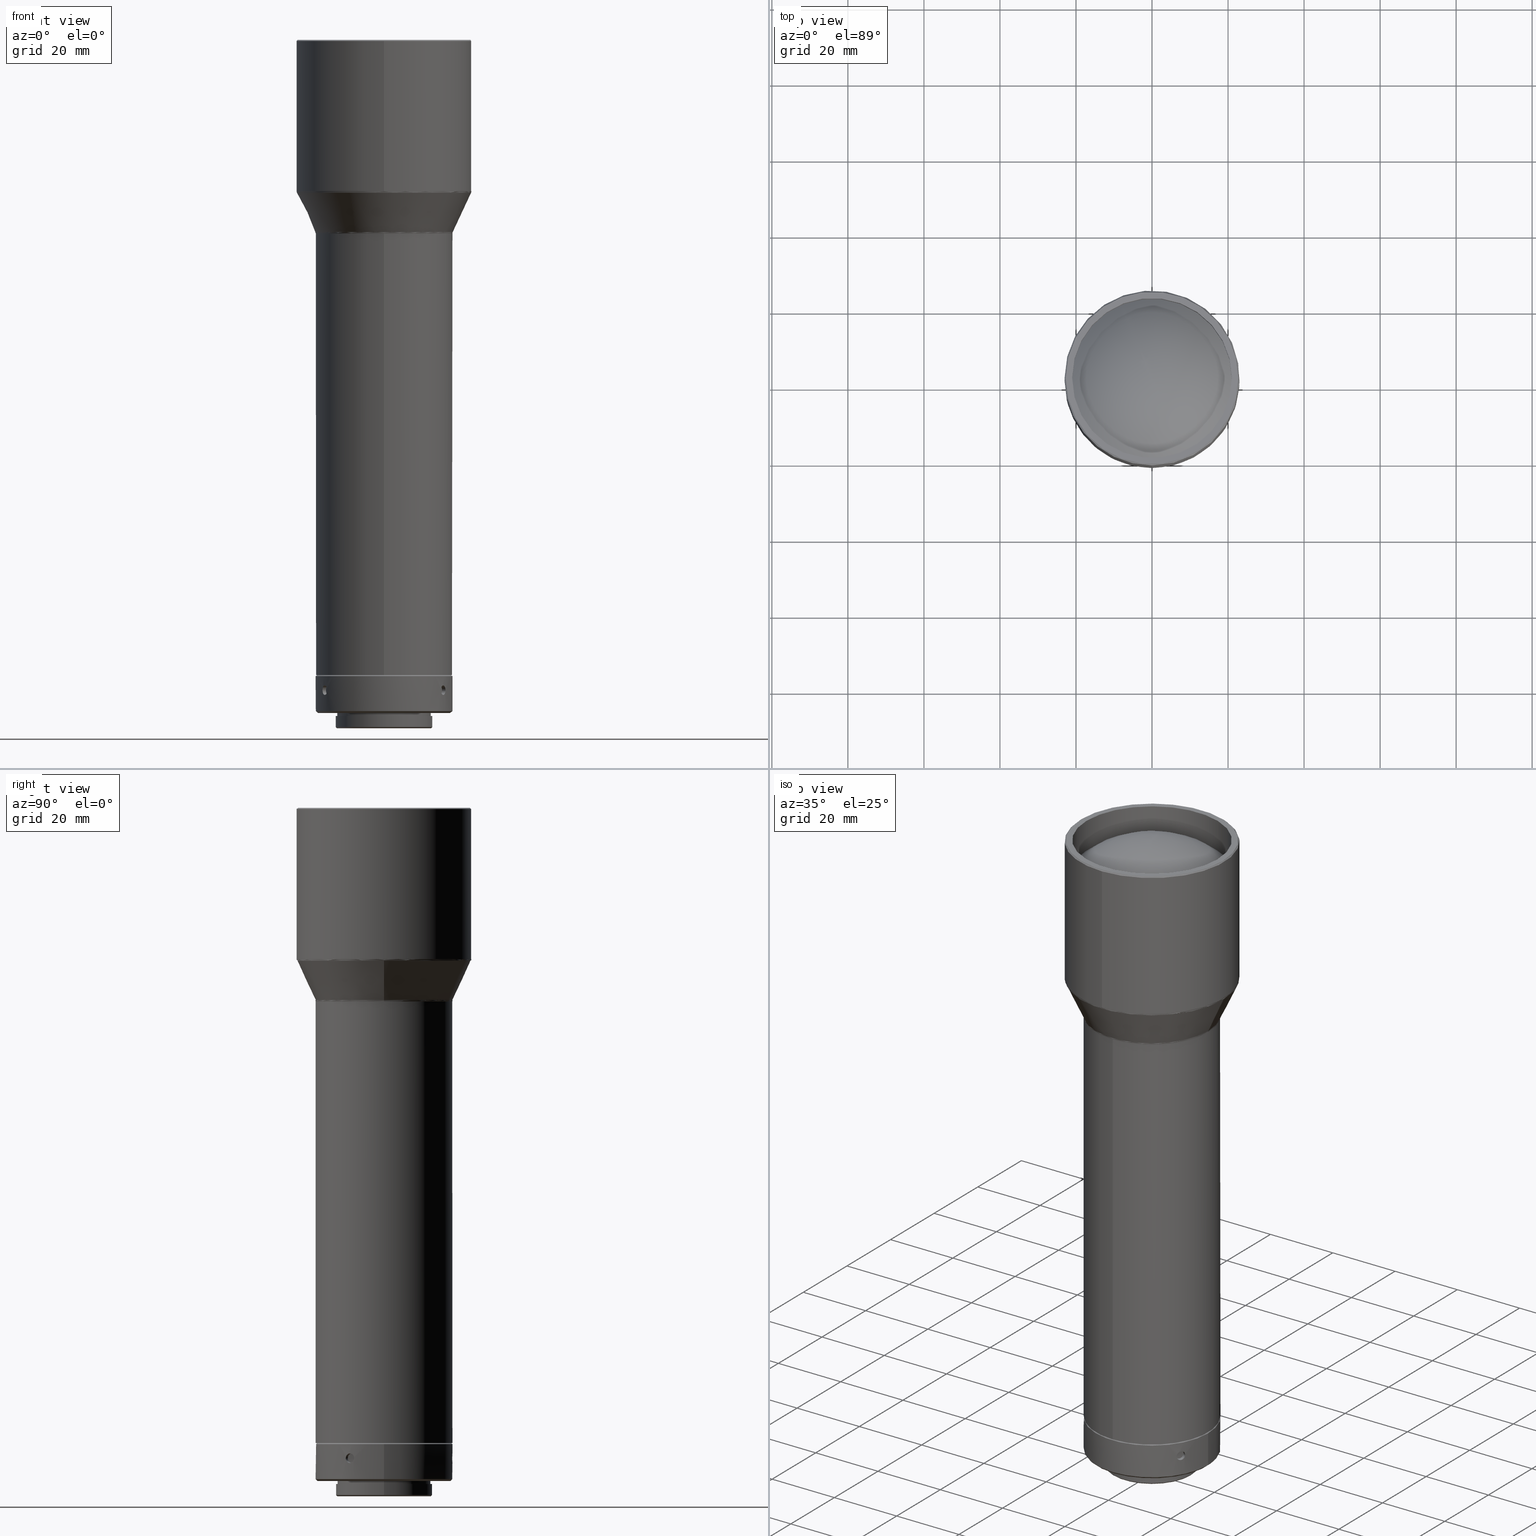
[diagram: canonical four-view strip — front | top / right | iso, engineering-drawing reading convention]
A machine part, canonical four-view strip (front | top / right | iso — engineering-drawing reading convention). The complete STEP part file that produces these views, byte-faithful:
ISO-10303-21;
HEADER;
FILE_DESCRIPTION (( 'STEP AP203' ),
    '1' );
FILE_NAME ('600078.STEP',
    '2024-08-14T02:06:26',
    ( 'Windows User' ),
    ( 'P R C' ),
    'SwSTEP 2.0',
    'SolidWorks 2020',
    '' );
FILE_SCHEMA (( 'CONFIG_CONTROL_DESIGN' ));
ENDSEC;

DATA;
#1 = ADVANCED_FACE ( 'NONE', ( #65, #322 ), #574, .F. ) ;
#2 = CARTESIAN_POINT ( 'NONE',  ( 6.030200055689006983E-30, -1.272382910686673902E-30, -904.0834119999999530 ) ) ;
#3 = APPROVAL_DATE_TIME ( #390, #355 ) ;
#4 = CARTESIAN_POINT ( 'NONE',  ( 15.26487564935874808, -9.539717018441056240, -902.9911161845229799 ) ) ;
#5 = EDGE_LOOP ( 'NONE', ( #611 ) ) ;
#6 = DATE_TIME_ROLE ( 'creation_date' ) ;
#7 = CARTESIAN_POINT ( 'NONE',  ( 18.03173219073663702, 36.06346438147328826, -783.6544846999101992 ) ) ;
#8 = PRODUCT_DEFINITION_FORMATION_WITH_SPECIFIED_SOURCE ( '�κ�', '', #21, .NOT_KNOWN. ) ;
#9 = AXIS2_PLACEMENT_3D ( 'NONE', #572, #499, #372 ) ;
#10 = FACE_OUTER_BOUND ( 'NONE', #547, .T. ) ;
#11 = CARTESIAN_POINT ( 'NONE',  ( -22.70000000000002416, -8.273863282956645258E-15, -733.0000000000000000 ) ) ;
#12 = CLOSED_SHELL ( 'NONE', ( #264, #636 ) ) ;
#13 = CARTESIAN_POINT ( 'NONE',  ( 0.000000000000000000, -6.938893903907228378E-15, -733.0000000000000000 ) ) ;
#14 = VERTEX_POINT ( 'NONE', #211 ) ;
#15 = DIRECTION ( 'NONE',  ( 0.000000000000000000, 0.000000000000000000, 1.000000000000000000 ) ) ;
#16 = AXIS2_PLACEMENT_3D ( 'NONE', #304, #119, #495 ) ;
#17 = CARTESIAN_POINT ( 'NONE',  ( -1.181967344874662072E-14, -23.00000000000000711, -733.2999999999999545 ) ) ;
#18 = CARTESIAN_POINT ( 'NONE',  ( 6.030200055689006983E-30, -1.272382910686673902E-30, -900.0834119999999530 ) ) ;
#19 = CARTESIAN_POINT ( 'NONE',  ( 15.89389229175798235, -8.450273022655030886, -902.9907363457097063 ) ) ;
#20 = SECURITY_CLASSIFICATION ( '', '', #380 ) ;
#21 = PRODUCT ( '600078', '600078', '', ( #687 ) ) ;
#22 = CARTESIAN_POINT ( 'NONE',  ( 17.99999999999998579, -5.470768455313372462E-15, -783.7976193625058841 ) ) ;
#23 = CC_DESIGN_PERSON_AND_ORGANIZATION_ASSIGNMENT ( #517, #76, ( #21 ) ) ;
#24 = CARTESIAN_POINT ( 'NONE',  ( -14.27853305242035908, -9.128800329293149218, -905.0845078038163365 ) ) ;
#25 = CARTESIAN_POINT ( 'NONE',  ( -0.7665064650335983165, 16.92997251681835991, -905.0845078038167912 ) ) ;
#26 = DIRECTION ( 'NONE',  ( 1.000000000000000000, 0.000000000000000000, 0.000000000000000000 ) ) ;
#27 = CLOSED_SHELL ( 'NONE', ( #80, #288, #554, #589, #776, #512, #376, #496, #363, #647, #1, #37, #440, #612, #519, #312, #243, #177, #236, #213, #43, #155, #463, #99, #73 ) ) ;
#28 = AXIS2_PLACEMENT_3D ( 'NONE', #13, #653, #338 ) ;
#29 = ORIENTED_EDGE ( 'NONE', *, *, #137, .T. ) ;
#30 = DIRECTION ( 'NONE',  ( 1.000000000000000000, 2.017886037986976939E-31, 0.000000000000000000 ) ) ;
#31 = PLANE ( 'NONE',  #712 ) ;
#32 = CARTESIAN_POINT ( 'NONE',  ( 15.26509761156019884, -9.539377401184779615, -905.1760880156602980 ) ) ;
#33 = EDGE_LOOP ( 'NONE', ( #29 ) ) ;
#34 = CARTESIAN_POINT ( 'NONE',  ( -14.27739618900188923, -9.130559340951521108, -903.0842477183140318 ) ) ;
#35 = DIRECTION ( 'NONE',  ( 0.000000000000000000, 1.000000000000000000, 6.211497171485103808E-18 ) ) ;
#36 = CARTESIAN_POINT ( 'NONE',  ( -1.181967344874662072E-14, -8.273863282956648413E-15, -742.0000000000000000 ) ) ;
#37 = ADVANCED_FACE ( 'NONE', ( #392, #751 ), #182, .F. ) ;
#38 = ORIENTED_EDGE ( 'NONE', *, *, #165, .F. ) ;
#39 = AXIS2_PLACEMENT_3D ( 'NONE', #2, #311, #561 ) ;
#40 = CARTESIAN_POINT ( 'NONE',  ( 22.90630778703662429, -6.058985156605471921E-15, -773.2009235990977913 ) ) ;
#41 = CARTESIAN_POINT ( 'NONE',  ( -15.67042028344148719, -8.858020202463205095, -902.8335249727660994 ) ) ;
#42 = AXIS2_PLACEMENT_3D ( 'NONE', #790, #466, #403 ) ;
#43 = ADVANCED_FACE ( 'NONE', ( #204, #711 ), #468, .T. ) ;
#44 = EDGE_LOOP ( 'NONE', ( #188 ) ) ;
#45 = CARTESIAN_POINT ( 'NONE',  ( 14.75757189029825511, -8.332976697082923323, -905.3335247023671855 ) ) ;
#46 = CARTESIAN_POINT ( 'NONE',  ( 0.000000000000000000, -1.272382910686673902E-30, -909.5834119999999530 ) ) ;
#47 = CARTESIAN_POINT ( 'NONE',  ( -15.19139325230758253, -9.655839439901393817, -903.0823159321255389 ) ) ;
#48 = ORIENTED_EDGE ( 'NONE', *, *, #602, .F. ) ;
#49 = AXIS2_PLACEMENT_3D ( 'NONE', #18, #232, #166 ) ;
#50 = DIRECTION ( 'NONE',  ( 4.208976393280964279E-22, 5.550944505959339029E-17, -1.000000000000000000 ) ) ;
#51 = DIRECTION ( 'NONE',  ( -0.000000000000000000, -0.000000000000000000, -1.000000000000000000 ) ) ;
#52 = CARTESIAN_POINT ( 'NONE',  ( -15.42218430790377148, -9.283256999105457652, -905.3004273772534134 ) ) ;
#53 = EDGE_LOOP ( 'NONE', ( #445 ) ) ;
#54 = CARTESIAN_POINT ( 'NONE',  ( -0.1622122895000129295, 18.00000780388930721, -902.8332996239674912 ) ) ;
#55 = CARTESIAN_POINT ( 'NONE',  ( 22.99999999999998579, -46.00000000000000000, -772.7783053373568691 ) ) ;
#56 = APPROVAL_PERSON_ORGANIZATION ( #645, #197, #79 ) ;
#57 = DIRECTION ( 'NONE',  ( 0.000000000000000000, -1.000000000000000000, -4.846800431335609858E-15 ) ) ;
#58 = B_SPLINE_CURVE_WITH_KNOTS ( 'NONE', 3,
 ( #782, #221, #601, #650, #84, #479, #537, #340, #592, #730, #795, #414, #484, #661, #758, #820, #452, #753, #189, #508, #505, #679, #61, #697, #300, #45, #127, #568, #184, #366, #813, #254, #744, #447 ),
 .UNSPECIFIED., .T., .F.,
 ( 4, 2, 2, 2, 2, 2, 2, 2, 2, 2, 2, 2, 2, 2, 2, 2, 4 ),
 ( 0.000000000000000000, 0.0004885703396320692331, 0.0009771406792641384662, 0.001465711018896207699, 0.001954281358528276932, 0.002442851698160346165, 0.002931422037792415398, 0.003419992377424484632, 0.003908562717056553865, 0.004397133056688623531, 0.004885703396320692331, 0.005374273735952761130, 0.005862844075584830797, 0.006351414415216900464, 0.006839984754848969263, 0.007328555094481038062, 0.007817125434113107729 ),
 .UNSPECIFIED. ) ;
#59 = ORIENTED_EDGE ( 'NONE', *, *, #767, .F. ) ;
#60 = MANIFOLD_SOLID_BREP ( '<��Ƭ>-<�ƶ���1>', #12 ) ;
#61 = CARTESIAN_POINT ( 'NONE',  ( 14.35231131501843116, -9.012858791773863842, -905.1757021104274372 ) ) ;
#62 = VERTEX_POINT ( 'NONE', #316 ) ;
#63 = CARTESIAN_POINT ( 'NONE',  ( 0.7665048592950624018, 17.98405222760584721, -905.0845086175249889 ) ) ;
#64 = DIRECTION ( 'NONE',  ( 0.000000000000000000, 0.000000000000000000, 1.000000000000000000 ) ) ;
#65 = FACE_OUTER_BOUND ( 'NONE', #755, .T. ) ;
#66 = EDGE_CURVE ( 'NONE', #759, #759, #594, .T. ) ;
#67 = CARTESIAN_POINT ( 'NONE',  ( 6.030200055689006983E-30, 12.29999999999999893, -910.0834119999999530 ) ) ;
#68 = APPROVAL_PERSON_ORGANIZATION ( #262, #355, #133 ) ;
#69 = CARTESIAN_POINT ( 'NONE',  ( 15.06517464280619834, -9.851590384043120707, -903.3147808769150515 ) ) ;
#70 = VERTEX_POINT ( 'NONE', #207 ) ;
#71 = CARTESIAN_POINT ( 'NONE',  ( 18.03173219073664413, -5.478713781002846867E-15, -783.6544846999101992 ) ) ;
#72 =( NAMED_UNIT ( * ) SI_UNIT ( $, .STERADIAN. ) SOLID_ANGLE_UNIT ( ) );
#73 = ADVANCED_FACE ( 'NONE', ( #726 ), #806, .T. ) ;
#74 = CARTESIAN_POINT ( 'NONE',  ( -16.06471677035730394, -8.120254879791547253, -904.8513321707624755 ) ) ;
#75 =( NAMED_UNIT ( * ) PLANE_ANGLE_UNIT ( ) SI_UNIT ( $, .RADIAN. ) );
#76 = PERSON_AND_ORGANIZATION_ROLE ( 'design_owner' ) ;
#77 = AXIS2_PLACEMENT_3D ( 'NONE', #131, #260, #389 ) ;
#78 = CARTESIAN_POINT ( 'NONE',  ( -18.00000000000002132, -5.470768455313381929E-15, -783.7976193625058841 ) ) ;
#79 = APPROVAL_ROLE ( '' ) ;
#80 = ADVANCED_FACE ( 'NONE', ( #357, #477 ), #94, .T. ) ;
#81 = FACE_OUTER_BOUND ( 'NONE', #728, .T. ) ;
#82 = DIRECTION ( 'NONE',  ( 0.000000000000000000, -3.831877159409404443E-17, 1.000000000000000000 ) ) ;
#83 = CARTESIAN_POINT ( 'NONE',  ( 1.249999999999991118, 17.95654476785553655, -904.0834119999999530 ) ) ;
#84 = CARTESIAN_POINT ( 'NONE',  ( 15.15083573188159427, -7.593637629088103580, -903.3147753939462063 ) ) ;
#85 = CALENDAR_DATE ( 2024, 14, 8 ) ;
#86 = DIRECTION ( 'NONE',  ( 0.000000000000000000, 0.000000000000000000, 1.000000000000000000 ) ) ;
#87 = DIRECTION ( 'NONE',  ( -0.3830490080632378835, 0.9237280213470681067, 0.000000000000000000 ) ) ;
#88 = CARTESIAN_POINT ( 'NONE',  ( -14.15122423703453691, -9.324931858964420783, -904.8513270013505689 ) ) ;
#89 = PERSON_AND_ORGANIZATION_ROLE ( 'creator' ) ;
#90 = CARTESIAN_POINT ( 'NONE',  ( -1.181967344874662072E-14, -8.273863282956648413E-15, -742.0000000000000000 ) ) ;
#91 = EDGE_LOOP ( 'NONE', ( #607 ) ) ;
#92 = CARTESIAN_POINT ( 'NONE',  ( -15.24733246532157338, -7.397340703587016009, -903.7557711098352229 ) ) ;
#93 = CARTESIAN_POINT ( 'NONE',  ( -1.217460700590135891, 16.90324160801395692, -903.7561000654417285 ) ) ;
#94 = CYLINDRICAL_SURFACE ( 'NONE', #708, 18.00000000000000355 ) ;
#95 = AXIS2_PLACEMENT_3D ( 'NONE', #459, #703, #134 ) ;
#96 = EDGE_LOOP ( 'NONE', ( #434 ) ) ;
#97 = EDGE_LOOP ( 'NONE', ( #454 ) ) ;
#98 = DIRECTION ( 'NONE',  ( -1.000000000000000000, 0.000000000000000000, 0.000000000000000000 ) ) ;
#99 = ADVANCED_FACE ( 'NONE', ( #544, #294 ), #162, .F. ) ;
#100 = DIRECTION ( 'NONE',  ( 1.370518107951365612E-32, 6.211497171485103808E-18, -1.000000000000000000 ) ) ;
#101 = CARTESIAN_POINT ( 'NONE',  ( 15.01397497146086124, -9.928973643487818634, -904.7138379346065449 ) ) ;
#102 = EDGE_LOOP ( 'NONE', ( #794 ) ) ;
#103 = FACE_BOUND ( 'NONE', #696, .T. ) ;
#104 = CARTESIAN_POINT ( 'NONE',  ( 15.67042018912277435, -8.858020365846082100, -905.3332990273639780 ) ) ;
#105 = EDGE_LOOP ( 'NONE', ( #824 ) ) ;
#106 = CARTESIAN_POINT ( 'NONE',  ( -1.000012230497474341, 17.97258022027630631, -903.3154928980901559 ) ) ;
#107 = CARTESIAN_POINT ( 'NONE',  ( 22.99999999999998579, 45.99999999999998579, -772.9249152400419689 ) ) ;
#108 = CARTESIAN_POINT ( 'NONE',  ( 1.250000331759496763, 16.90074945006620766, -903.9182088169520739 ) ) ;
#109 = CARTESIAN_POINT ( 'NONE',  ( -15.42341458922628483, -9.281228838265834113, -902.8656271631305117 ) ) ;
#110 = CIRCLE ( 'NONE', #699, 23.00000000000000000 ) ;
#111 = EDGE_LOOP ( 'NONE', ( #327 ) ) ;
#112 = EDGE_CURVE ( 'NONE', #62, #62, #550, .T. ) ;
#113 = CARTESIAN_POINT ( 'NONE',  ( 18.03173219073664413, -5.478713781002846867E-15, -783.6544846999101992 ) ) ;
#114 = CARTESIAN_POINT ( 'NONE',  ( 22.90630778703662429, -45.81261557407327700, -773.2009235990976777 ) ) ;
#115 = CARTESIAN_POINT ( 'NONE',  ( -2.775557561562891351E-14, -3.306816626080788524E-15, -742.0000000000001137 ) ) ;
#116 = CARTESIAN_POINT ( 'NONE',  ( -15.26487600238791842, -9.539716451242952644, -905.1757081720306815 ) ) ;
#117 = CARTESIAN_POINT ( 'NONE',  ( 0.7685930773333922161, 17.98395353626940363, -903.0842425139829857 ) ) ;
#118 = CC_DESIGN_DATE_AND_TIME_ASSIGNMENT ( #140, #6, ( #676 ) ) ;
#119 = DIRECTION ( 'NONE',  ( 0.000000000000000000, 0.000000000000000000, 1.000000000000000000 ) ) ;
#120 = DIRECTION ( 'NONE',  ( 0.000000000000000000, 1.000000000000000000, 6.167905692361986477E-15 ) ) ;
#121 = CARTESIAN_POINT ( 'NONE',  ( -1.091986416381326874, 17.96695628302231995, -904.7134196652779110 ) ) ;
#122 = ORIENTED_EDGE ( 'NONE', *, *, #205, .T. ) ;
#123 = DIRECTION ( 'NONE',  ( -4.208976393280964279E-22, -5.550944505959339029E-17, 1.000000000000000000 ) ) ;
#124 = AXIS2_PLACEMENT_3D ( 'NONE', #115, #509, #455 ) ;
#125 = FACE_BOUND ( 'NONE', #295, .T. ) ;
#126 = CARTESIAN_POINT ( 'NONE',  ( -1.217386932848438352, 17.95889559784534839, -903.7557887959092113 ) ) ;
#127 = CARTESIAN_POINT ( 'NONE',  ( 14.83736494702798403, -8.189832950507119236, -905.3011957316997496 ) ) ;
#128 = PLANE ( 'NONE',  #77 ) ;
#129 = DIRECTION ( 'NONE',  ( -0.000000000000000000, -3.083952846180993633E-15, 1.000000000000000000 ) ) ;
#130 = PERSON_AND_ORGANIZATION ( #643, #418 ) ;
#131 = CARTESIAN_POINT ( 'NONE',  ( -7.311375404722653570, -63.84507486142587851, -742.0000000000001137 ) ) ;
#132 = FACE_BOUND ( 'NONE', #747, .T. ) ;
#133 = APPROVAL_ROLE ( '' ) ;
#134 = DIRECTION ( 'NONE',  ( -0.5000000000000041078, -0.8660254037844363761, 0.000000000000000000 ) ) ;
#135 = VERTEX_POINT ( 'NONE', #277 ) ;
#136 = CC_DESIGN_APPROVAL ( #393, ( #8 ) ) ;
#137 = EDGE_CURVE ( 'NONE', #331, #331, #110, .T. ) ;
#138 = CARTESIAN_POINT ( 'NONE',  ( -18.00000000000001066, -36.00000000000001421, -783.7976193625058841 ) ) ;
#139 = VERTEX_POINT ( 'NONE', #704 ) ;
#140 = DATE_AND_TIME ( #579, #415 ) ;
#141 = CYLINDRICAL_SURFACE ( 'NONE', #722, 12.29999999999999893 ) ;
#142 = VERTEX_POINT ( 'NONE', #269 ) ;
#143 = ORIENTED_EDGE ( 'NONE', *, *, #602, .T. ) ;
#144 = DIRECTION ( 'NONE',  ( 0.000000000000000000, 0.000000000000000000, 1.000000000000000000 ) ) ;
#145 = AXIS2_PLACEMENT_3D ( 'NONE', #404, #82, #654 ) ;
#146 = CARTESIAN_POINT ( 'NONE',  ( -18.00000000000001066, -36.00000000000001421, -783.9442292651909838 ) ) ;
#147 = APPLICATION_PROTOCOL_DEFINITION ( 'international standard', 'config_control_design', 1994, #750 ) ;
#148 = CIRCLE ( 'NONE', #334, 18.09369221296335795 ) ;
#149 = CARTESIAN_POINT ( 'NONE',  ( 17.99999999999998934, -5.462630220975087437E-15, -783.9442292651908701 ) ) ;
#150 = CYLINDRICAL_SURFACE ( 'NONE', #145, 16.94691219081847322 ) ;
#151 = CARTESIAN_POINT ( 'NONE',  ( 12.29999999999999893, -1.272382910686673902E-30, -910.0834119999999530 ) ) ;
#152 = CARTESIAN_POINT ( 'NONE',  ( -14.83736514471258872, -8.189832595488429234, -902.8656283480131606 ) ) ;
#153 = AXIS2_PLACEMENT_3D ( 'NONE', #723, #330, #648 ) ;
#154 = CARTESIAN_POINT ( 'NONE',  ( 15.95789887597212697, -8.328212755427129466, -903.0823159321255389 ) ) ;
#155 = ADVANCED_FACE ( 'NONE', ( #651, #219 ), #774, .T. ) ;
#156 = DIRECTION ( 'NONE',  ( 0.000000000000000000, 0.000000000000000000, 1.000000000000000000 ) ) ;
#157 = CARTESIAN_POINT ( 'NONE',  ( -15.15083532142439537, -7.593638447446181772, -904.8520497483593772 ) ) ;
#158 = CARTESIAN_POINT ( 'NONE',  ( 16.17582379988434482, -7.895740902226664915, -904.2486132896939353 ) ) ;
#159 = EDGE_LOOP ( 'NONE', ( #38 ) ) ;
#160 = CARTESIAN_POINT ( 'NONE',  ( -14.15170095986457532, -9.324189817830340843, -903.3147753939465474 ) ) ;
#161 = CARTESIAN_POINT ( 'NONE',  ( -1.249999999999991340, 16.90074947460354338, -904.2486179591597875 ) ) ;
#162 = CYLINDRICAL_SURFACE ( 'NONE', #405, 21.00000000000000355 ) ;
#163 = LOCAL_TIME ( 10, 6, 26.00000000000000000, #337 ) ;
#164 = ORIENTED_EDGE ( 'NONE', *, *, #578, .F. ) ;
#165 = EDGE_CURVE ( 'NONE', #707, #707, #187, .T. ) ;
#166 = DIRECTION ( 'NONE',  ( 1.000000000000000000, 0.000000000000000000, 0.000000000000000000 ) ) ;
#167 = CARTESIAN_POINT ( 'NONE',  ( 1.249999668235447947, 16.90074949914124858, -904.2486202034863254 ) ) ;
#168 = CARTESIAN_POINT ( 'NONE',  ( 15.42341477952708395, -9.281228519509767239, -905.3011969096968414 ) ) ;
#169 = EDGE_LOOP ( 'NONE', ( #536 ) ) ;
#170 = CARTESIAN_POINT ( 'NONE',  ( -14.35253191181181442, -9.012524066482733076, -905.1760804001421548 ) ) ;
#171 = DIRECTION ( 'NONE',  ( 0.000000000000000000, 0.000000000000000000, 1.000000000000000000 ) ) ;
#172 = AXIS2_PLACEMENT_3D ( 'NONE', #691, #123, #383 ) ;
#173 = ORIENTED_EDGE ( 'NONE', *, *, #112, .F. ) ;
#174 = CARTESIAN_POINT ( 'NONE',  ( 22.96826780926333456, -45.93653561852670464, -773.0680499026377674 ) ) ;
#175 = CARTESIAN_POINT ( 'NONE',  ( 0.3260794919213196863, 16.94445143829109313, -902.8656283480135016 ) ) ;
#176 = DIRECTION ( 'NONE',  ( 0.000000000000000000, 1.000000000000000000, 0.000000000000000000 ) ) ;
#177 = ADVANCED_FACE ( 'NONE', ( #216, #10 ), #284, .F. ) ;
#178 = ORIENTED_EDGE ( 'NONE', *, *, #409, .F. ) ;
#179 = CARTESIAN_POINT ( 'NONE',  ( -22.90630778703664561, -45.81261557407328411, -773.2009235990976777 ) ) ;
#180 = CARTESIAN_POINT ( 'NONE',  ( -0.6292097477023419483, 16.93589557198372120, -902.9911222798268682 ) ) ;
#181 = CARTESIAN_POINT ( 'NONE',  ( -14.94412316329297319, -10.03379964370063249, -904.4107128894950165 ) ) ;
#182 = CYLINDRICAL_SURFACE ( 'NONE', #775, 1.249999999999991562 ) ;
#183 = CARTESIAN_POINT ( 'NONE',  ( -18.09369221296337216, -36.18738442592673010, -783.5216110034500616 ) ) ;
#184 = CARTESIAN_POINT ( 'NONE',  ( 15.04503951745383006, -7.801172187525149404, -905.0845078038165639 ) ) ;
#185 = FACE_BOUND ( 'NONE', #53, .T. ) ;
#186 = COORDINATED_UNIVERSAL_TIME_OFFSET ( 8, 0, .AHEAD. ) ;
#187 = B_SPLINE_CURVE_WITH_KNOTS ( 'NONE', 3,
 ( #535, #793, #480, #732, #768, #395, #789, #234, #41, #433, #109, #481, #47, #558, #375, #681, #309, #621, #181, #438, #818, #563, #116, #52, #252, #502, #525, #528, #709, #74, #474, #590, #520, #784 ),
 .UNSPECIFIED., .T., .F.,
 ( 4, 2, 2, 2, 2, 2, 2, 2, 2, 2, 2, 2, 2, 2, 2, 2, 4 ),
 ( 0.000000000000000000, 0.0004885519476059286669, 0.0009771038952118573338, 0.001465655842817786001, 0.001954207790423714668, 0.002442759738029643551, 0.002931311685635572001, 0.003419863633241500452, 0.003908415580847429335, 0.004396967528453358219, 0.004885519476059287103, 0.005374071423665215119, 0.005862623371271144003, 0.006351175318877072887, 0.006839727266483000903, 0.007328279214088929787, 0.007816831161694858671 ),
 .UNSPECIFIED. ) ;
#188 = ORIENTED_EDGE ( 'NONE', *, *, #426, .F. ) ;
#189 = CARTESIAN_POINT ( 'NONE',  ( 14.02990661463001132, -9.505972218466114398, -904.4107259705155002 ) ) ;
#190 = DIRECTION ( 'NONE',  ( -0.000000000000000000, -0.000000000000000000, 1.000000000000000000 ) ) ;
#191 = PERSON_AND_ORGANIZATION_ROLE ( 'classification_officer' ) ;
#192 = EDGE_LOOP ( 'NONE', ( #803 ) ) ;
#193 = FACE_OUTER_BOUND ( 'NONE', #632, .T. ) ;
#194 = CONICAL_SURFACE ( 'NONE', #583, 17.99999999999998224, 0.7853981633974482790 ) ;
#195 = FACE_OUTER_BOUND ( 'NONE', #429, .T. ) ;
#196 = ORIENTED_EDGE ( 'NONE', *, *, #409, .T. ) ;
#197 = APPROVAL ( #476, 'δָ��' ) ;
#198 = DIRECTION ( 'NONE',  ( 1.000000000000000000, 0.000000000000000000, 0.000000000000000000 ) ) ;
#199 = CALENDAR_DATE ( 2024, 14, 8 ) ;
#200 = CARTESIAN_POINT ( 'NONE',  ( 0.000000000000000000, 0.000000000000000000, 0.000000000000000000 ) ) ;
#201 = EDGE_LOOP ( 'NONE', ( #423 ) ) ;
#202 = CARTESIAN_POINT ( 'NONE',  ( 6.030200055689006983E-30, -1.272382910686673902E-30, -900.3834119999999075 ) ) ;
#203 = DATE_AND_TIME ( #686, #348 ) ;
#204 = FACE_OUTER_BOUND ( 'NONE', #365, .T. ) ;
#205 = EDGE_CURVE ( 'NONE', #637, #637, #522, .T. ) ;
#206 = CARTESIAN_POINT ( 'NONE',  ( 17.99999999999998579, 35.99999999999999289, -783.7976193625058841 ) ) ;
#207 = CARTESIAN_POINT ( 'NONE',  ( 0.000000000000000000, 17.70000000000001350, -900.0834119999999530 ) ) ;
#208 = DIRECTION ( 'NONE',  ( 0.000000000000000000, 0.000000000000000000, -1.000000000000000000 ) ) ;
#209 = VERTEX_POINT ( 'NONE', #719 ) ;
#210 = CARTESIAN_POINT ( 'NONE',  ( 6.030200055689006983E-30, -1.272382910686673902E-30, -900.0834119999999530 ) ) ;
#211 = CARTESIAN_POINT ( 'NONE',  ( 0.000000000000000000, -17.49999999999997513, -910.0834119999999530 ) ) ;
#212 = ORIENTED_EDGE ( 'NONE', *, *, #540, .F. ) ;
#213 = ADVANCED_FACE ( 'NONE', ( #532, #716 ), #335, .F. ) ;
#214 = CARTESIAN_POINT ( 'NONE',  ( -14.59447476983157443, -8.615435856156663519, -902.8335253026752980 ) ) ;
#215 = DIRECTION ( 'NONE',  ( 0.8660254037844433705, 0.4999999999999920064, 0.000000000000000000 ) ) ;
#216 = FACE_BOUND ( 'NONE', #600, .T. ) ;
#217 = CARTESIAN_POINT ( 'NONE',  ( -17.99999999999999645, -1.272382910686673902E-30, -900.3834119999999075 ) ) ;
#218 = FACE_BOUND ( 'NONE', #97, .T. ) ;
#219 = FACE_BOUND ( 'NONE', #381, .T. ) ;
#220 = DIRECTION ( 'NONE',  ( 1.000000000000000000, 0.000000000000000000, 0.000000000000000000 ) ) ;
#221 = CARTESIAN_POINT ( 'NONE',  ( 15.26147838800312861, -7.367842982571299437, -903.9182060408401185 ) ) ;
#222 = CARTESIAN_POINT ( 'NONE',  ( -1.091752512556371846, 16.91182643194364132, -904.7138420792235820 ) ) ;
#223 = CARTESIAN_POINT ( 'NONE',  ( 16.10573125108188108, -8.037996199706920919, -903.4529874048873808 ) ) ;
#224 = EDGE_CURVE ( 'NONE', #142, #142, #274, .T. ) ;
#225 = ORIENTED_EDGE ( 'NONE', *, *, #344, .T. ) ;
#226 = EDGE_LOOP ( 'NONE', ( #225 ) ) ;
#227 = CARTESIAN_POINT ( 'NONE',  ( -14.02990628855122424, -9.505972698827106271, -903.7561000654420695 ) ) ;
#228 = CARTESIAN_POINT ( 'NONE',  ( -1.249999999999990230, 16.90074947460353272, -903.9182060408401185 ) ) ;
#229 = CARTESIAN_POINT ( 'NONE',  ( 16.17582406642459247, -7.895740356171736529, -903.9182152969526669 ) ) ;
#230 = AXIS2_PLACEMENT_3D ( 'NONE', #698, #460, #702 ) ;
#231 = ORIENTED_EDGE ( 'NONE', *, *, #137, .F. ) ;
#232 = DIRECTION ( 'NONE',  ( 0.000000000000000000, 0.000000000000000000, 1.000000000000000000 ) ) ;
#233 = DIRECTION ( 'NONE',  ( -0.000000000000000000, -0.000000000000000000, 1.000000000000000000 ) ) ;
#234 = CARTESIAN_POINT ( 'NONE',  ( -15.75062872817974124, -8.714374564439973270, -902.8663966990361587 ) ) ;
#235 = ORIENTED_EDGE ( 'NONE', *, *, #756, .F. ) ;
#236 = ADVANCED_FACE ( 'NONE', ( #780, #332 ), #141, .T. ) ;
#237 = CARTESIAN_POINT ( 'NONE',  ( -22.96826780926336298, -6.066360901758987123E-15, -773.0680499026374264 ) ) ;
#238 = B_SPLINE_CURVE_WITH_KNOTS ( 'NONE', 3,
 ( #354, #420, #227, #360, #160, #34, #739, #542, #214, #720, #152, #278, #407, #345, #475, #92, #282, #800, #724, #486, #157, #411, #292, #791, #472, #609, #350, #170, #24, #88, #425, #527, #596, #534 ),
 .UNSPECIFIED., .T., .F.,
 ( 4, 2, 2, 2, 2, 2, 2, 2, 2, 2, 2, 2, 2, 2, 2, 2, 4 ),
 ( 0.000000000000000000, 0.0004885703396320690162, 0.0009771406792641380325, 0.001465711018896207049, 0.001954281358528276065, 0.002442851698160344864, 0.002931422037792414097, 0.003419992377424483330, 0.003908562717056552130, 0.004397133056688620929, 0.004885703396320689729, 0.005374273735952761130, 0.005862844075584831664, 0.006351414415216902198, 0.006839984754848972733, 0.007328555094481044134, 0.007817125434113114668 ),
 .UNSPECIFIED. ) ;
#239 = DIRECTION ( 'NONE',  ( 0.000000000000000000, -1.000000000000000000, 0.000000000000000000 ) ) ;
#240 = UNCERTAINTY_MEASURE_WITH_UNIT (LENGTH_MEASURE( 1.000000000000000082E-05 ), #265, 'distance_accuracy_value', 'NONE');
#241 = ORIENTED_EDGE ( 'NONE', *, *, #816, .T. ) ;
#242 = CARTESIAN_POINT ( 'NONE',  ( -23.00000000000001066, -6.074306227448462317E-15, -772.9249152400417415 ) ) ;
#243 = ADVANCED_FACE ( 'NONE', ( #81 ), #777, .T. ) ;
#244 = CARTESIAN_POINT ( 'NONE',  ( -0.6288088378869298722, 16.93591927749723069, -905.1760804001421548 ) ) ;
#245 = ORIENTED_EDGE ( 'NONE', *, *, #224, .F. ) ;
#246 = ORIENTED_EDGE ( 'NONE', *, *, #426, .T. ) ;
#247 = CARTESIAN_POINT ( 'NONE',  ( 22.99999999999998579, 45.99999999999998579, -772.7783053373568691 ) ) ;
#248 = DIRECTION ( 'NONE',  ( 1.000000000000000000, 0.000000000000000000, 0.000000000000000000 ) ) ;
#249 = CONICAL_SURFACE ( 'NONE', #599, 18.00000000000000355, 0.7853981633974552734 ) ;
#250 = CARTESIAN_POINT ( 'NONE',  ( -1.091756721072177916, 17.96697050981530452, -903.4529874048878355 ) ) ;
#251 = DATE_AND_TIME ( #199, #693 ) ;
#252 = CARTESIAN_POINT ( 'NONE',  ( -15.50648075862407005, -9.141971788833755497, -905.3332990273639780 ) ) ;
#253 = B_SPLINE_CURVE_WITH_KNOTS ( 'NONE', 3,
 ( #748, #489, #808, #757, #683, #117, #689, #743, #622, #54, #628, #608, #548, #106, #250, #126, #379, #680, #620, #121, #625, #374, #760, #566, #320, #815, #500, #444, #63, #385, #261, #317, #745, #570 ),
 .UNSPECIFIED., .T., .F.,
 ( 4, 2, 2, 2, 2, 2, 2, 2, 2, 2, 2, 2, 2, 2, 2, 2, 4 ),
 ( 0.000000000000000000, 0.0004885519476059285585, 0.0009771038952118571170, 0.001465655842817785350, 0.001954207790423713367, 0.002442759738029640949, 0.002931311685635568966, 0.003419863633241496115, 0.003908415580847424131, 0.004396967528453352148, 0.004885519476059279297, 0.005374071423665207313, 0.005862623371271134462, 0.006351175318877062478, 0.006839727266482989627, 0.007328279214088918511, 0.007816831161694846528 ),
 .UNSPECIFIED. ) ;
#254 = CARTESIAN_POINT ( 'NONE',  ( 15.24733222152911871, -7.397341207432623023, -904.4110548747405574 ) ) ;
#255 = DIRECTION ( 'NONE',  ( 1.000000000000000000, 0.000000000000000000, 0.000000000000000000 ) ) ;
#256 = CYLINDRICAL_SURFACE ( 'NONE', #664, 16.94691219081847322 ) ;
#257 = CARTESIAN_POINT ( 'NONE',  ( -22.90630778703664916, -6.058985156605470343E-15, -773.2009235990977913 ) ) ;
#258 = DIRECTION ( 'NONE',  ( 1.000000000000000000, 0.000000000000000000, 0.000000000000000000 ) ) ;
#259 = AXIS2_PLACEMENT_3D ( 'NONE', #263, #318, #515 ) ;
#260 = DIRECTION ( 'NONE',  ( -1.848892746611746419E-32, 1.318609258053556101E-16, 1.000000000000000000 ) ) ;
#261 = CARTESIAN_POINT ( 'NONE',  ( 1.091755923036134002, 17.96697055881277194, -904.7138379346062038 ) ) ;
#262 = PERSON_AND_ORGANIZATION ( #643, #418 ) ;
#263 = CARTESIAN_POINT ( 'NONE',  ( -1.214306433183764966E-14, -8.273863282956645258E-15, -733.0000000000000000 ) ) ;
#264 = ADVANCED_FACE ( 'NONE', ( #586 ), #410, .T. ) ;
#265 =( LENGTH_UNIT ( ) NAMED_UNIT ( * ) SI_UNIT ( .MILLI., .METRE. ) );
#266 = COORDINATED_UNIVERSAL_TIME_OFFSET ( 8, 0, .AHEAD. ) ;
#267 = CARTESIAN_POINT ( 'NONE',  ( 15.66957017123612594, -8.859523938431872025, -902.8332996239673776 ) ) ;
#268 = CARTESIAN_POINT ( 'NONE',  ( -18.03173219073666189, 36.06346438147329536, -783.6544846999101992 ) ) ;
#269 = CARTESIAN_POINT ( 'NONE',  ( 18.00000000000000355, -1.272382910686673902E-30, -909.5834119999999530 ) ) ;
#270 = CC_DESIGN_APPROVAL ( #197, ( #676 ) ) ;
#271 = CARTESIAN_POINT ( 'NONE',  ( 6.030200055689006983E-30, -1.272382910686673902E-30, -909.5834119999999530 ) ) ;
#272 = CARTESIAN_POINT ( 'NONE',  ( -23.00000000000001066, -6.082444461786748131E-15, -772.7783053373569828 ) ) ;
#273 = CARTESIAN_POINT ( 'NONE',  ( -16.17582393315550959, -7.895740629197078420, -904.0834120000001803 ) ) ;
#274 = CIRCLE ( 'NONE', #397, 18.00000000000000355 ) ;
#275 = CARTESIAN_POINT ( 'NONE',  ( 17.99999999999998934, -5.462630220975087437E-15, -783.9442292651908701 ) ) ;
#276 = AXIS2_PLACEMENT_3D ( 'NONE', #285, #786, #30 ) ;
#277 = CARTESIAN_POINT ( 'NONE',  ( 8.217209483082285715, -19.81591518845252864, -742.0000000000001137 ) ) ;
#278 = CARTESIAN_POINT ( 'NONE',  ( -14.98134109892622057, -7.923394553932112672, -902.9907439954131405 ) ) ;
#279 = AXIS2_PLACEMENT_3D ( 'NONE', #667, #655, #98 ) ;
#280 = DIRECTION ( 'NONE',  ( 4.665676044949140993E-17, 1.934749774458438248E-17, 1.000000000000000000 ) ) ;
#281 = VERTEX_POINT ( 'NONE', #461 ) ;
#282 = CARTESIAN_POINT ( 'NONE',  ( -15.26147853263303666, -7.367842682990261238, -903.9182088169524150 ) ) ;
#283 = CARTESIAN_POINT ( 'NONE',  ( 16.06471715756161345, -8.120254114432439607, -903.3154928980899285 ) ) ;
#284 = PLANE ( 'NONE',  #42 ) ;
#285 = CARTESIAN_POINT ( 'NONE',  ( -1.181965665454206769E-14, -6.058985156605481387E-15, -773.2009235990977913 ) ) ;
#286 = AXIS2_PLACEMENT_3D ( 'NONE', #487, #171, #788 ) ;
#287 = ADVANCED_BREP_SHAPE_REPRESENTATION ( '600078', ( #603, #60, #771 ), #799 ) ;
#288 = ADVANCED_FACE ( 'NONE', ( #469, #343 ), #752, .F. ) ;
#289 = CARTESIAN_POINT ( 'NONE',  ( -0.3284582807728691489, 16.94439668119029818, -902.8664005385949167 ) ) ;
#290 = CARTESIAN_POINT ( 'NONE',  ( 14.92582393315539413, -10.06080413865837997, -904.0834120000000667 ) ) ;
#291 = ORIENTED_EDGE ( 'NONE', *, *, #659, .T. ) ;
#292 = CARTESIAN_POINT ( 'NONE',  ( -14.98152033190734045, -7.923036805941810812, -905.1757021104273235 ) ) ;
#293 = CARTESIAN_POINT ( 'NONE',  ( -0.1639489311913711611, 16.94690383364352471, -902.8335253026754117 ) ) ;
#294 = FACE_OUTER_BOUND ( 'NONE', #737, .T. ) ;
#295 = EDGE_LOOP ( 'NONE', ( #143 ) ) ;
#296 = DIRECTION ( 'NONE',  ( 4.208976393280964279E-22, 5.550944505959339029E-17, -1.000000000000000000 ) ) ;
#297 = CARTESIAN_POINT ( 'NONE',  ( -1.181967357501591288E-14, -8.290516116474524186E-15, -733.0000000000000000 ) ) ;
#298 = CIRCLE ( 'NONE', #230, 12.29999999999999893 ) ;
#299 = EDGE_LOOP ( 'NONE', ( #178 ) ) ;
#300 = CARTESIAN_POINT ( 'NONE',  ( 14.59447487308816527, -8.615435677332074604, -905.3332986974678533 ) ) ;
#301 = CARTESIAN_POINT ( 'NONE',  ( 1.091753385960457345, 16.91182637497317742, -903.4529833867335356 ) ) ;
#302 = ORIENTED_EDGE ( 'NONE', *, *, #787, .F. ) ;
#303 = CARTESIAN_POINT ( 'NONE',  ( -18.03173219073666189, -36.06346438147330957, -783.6544846999101992 ) ) ;
#304 = CARTESIAN_POINT ( 'NONE',  ( 6.030200055689006983E-30, 10.75000000000000000, -914.0834119999999530 ) ) ;
#305 = CIRCLE ( 'NONE', #276, 22.90630778703667048 ) ;
#306 = ORIENTED_EDGE ( 'NONE', *, *, #690, .T. ) ;
#307 = CARTESIAN_POINT ( 'NONE',  ( -23.00000000000001066, -6.082444461786748131E-15, -772.7783053373569828 ) ) ;
#308 = CYLINDRICAL_SURFACE ( 'NONE', #39, 1.249999999999973355 ) ;
#309 = CARTESIAN_POINT ( 'NONE',  ( -14.92582376334306105, -10.06080439058547071, -903.9182152969525532 ) ) ;
#310 = CARTESIAN_POINT ( 'NONE',  ( -23.00000000000001066, -46.00000000000000000, -772.7783053373568691 ) ) ;
#311 = DIRECTION ( 'NONE',  ( 0.000000000000000000, -1.000000000000000000, 0.000000000000000000 ) ) ;
#312 = ADVANCED_FACE ( 'NONE', ( #504 ), #256, .T. ) ;
#313 = COORDINATED_UNIVERSAL_TIME_OFFSET ( 8, 0, .AHEAD. ) ;
#314 = EDGE_LOOP ( 'NONE', ( #541 ) ) ;
#315 = PLANE ( 'NONE',  #16 ) ;
#316 = CARTESIAN_POINT ( 'NONE',  ( 12.69999999999999751, -1.272382910686673902E-30, -913.7834119999999984 ) ) ;
#317 = CARTESIAN_POINT ( 'NONE',  ( 1.217386422865418538, 17.95889563292107738, -904.4110370172559215 ) ) ;
#318 = DIRECTION ( 'NONE',  ( 0.000000000000000000, 0.000000000000000000, -1.000000000000000000 ) ) ;
#319 = CIRCLE ( 'NONE', #430, 23.00000000000000000 ) ;
#320 = CARTESIAN_POINT ( 'NONE',  ( -0.1639394304986134809, 17.99999215467991931, -905.3332990273638643 ) ) ;
#321 = APPROVAL_ROLE ( '' ) ;
#322 = FACE_OUTER_BOUND ( 'NONE', #511, .T. ) ;
#323 = EDGE_CURVE ( 'NONE', #470, #470, #253, .T. ) ;
#324 = DIRECTION ( 'NONE',  ( 1.000000000000000000, 0.000000000000000000, -0.000000000000000000 ) ) ;
#325 = COORDINATED_UNIVERSAL_TIME_OFFSET ( 8, 0, .AHEAD. ) ;
#326 = CARTESIAN_POINT ( 'NONE',  ( 15.19026408422143248, -9.657597898278536874, -903.0842425139830993 ) ) ;
#327 = ORIENTED_EDGE ( 'NONE', *, *, #224, .T. ) ;
#328 = VERTEX_POINT ( 'NONE', #785 ) ;
#329 = CARTESIAN_POINT ( 'NONE',  ( 15.50648066428969685, -9.141971952207601504, -902.8335249727663268 ) ) ;
#330 = DIRECTION ( 'NONE',  ( -0.000000000000000000, -0.000000000000000000, -1.000000000000000000 ) ) ;
#331 = VERTEX_POINT ( 'NONE', #710 ) ;
#332 = FACE_OUTER_BOUND ( 'NONE', #201, .T. ) ;
#333 = CARTESIAN_POINT ( 'NONE',  ( -1.249999999999991118, 16.90074947460353982, -904.0834119999999530 ) ) ;
#334 = AXIS2_PLACEMENT_3D ( 'NONE', #506, #766, #198 ) ;
#335 = PLANE ( 'NONE',  #822 ) ;
#336 = CARTESIAN_POINT ( 'NONE',  ( 12.69999999999999751, -1.272382910686673902E-30, -910.8834120000000212 ) ) ;
#337 = COORDINATED_UNIVERSAL_TIME_OFFSET ( 8, 0, .AHEAD. ) ;
#338 = DIRECTION ( 'NONE',  ( 0.000000000000000000, -1.000000000000000000, 0.000000000000000000 ) ) ;
#339 = VERTEX_POINT ( 'NONE', #333 ) ;
#340 = CARTESIAN_POINT ( 'NONE',  ( 14.83850711809792955, -8.187745125362550169, -902.8664005385949167 ) ) ;
#341 = DATE_AND_TIME ( #85, #163 ) ;
#342 = DIRECTION ( 'NONE',  ( 4.208976393280964279E-22, 5.550944505959339029E-17, -1.000000000000000000 ) ) ;
#343 = FACE_OUTER_BOUND ( 'NONE', #299, .T. ) ;
#344 = EDGE_CURVE ( 'NONE', #70, #70, #819, .T. ) ;
#345 = CARTESIAN_POINT ( 'NONE',  ( -15.15124041796805088, -7.592852915075634535, -903.3154981685997882 ) ) ;
#346 = CARTESIAN_POINT ( 'NONE',  ( 1.217381262905621986, 16.90324760670921478, -903.7557711098347681 ) ) ;
#347 = DIRECTION ( 'NONE',  ( 0.000000000000000000, 0.000000000000000000, 1.000000000000000000 ) ) ;
#348 = LOCAL_TIME ( 10, 6, 26.00000000000000000, #325 ) ;
#349 = EDGE_LOOP ( 'NONE', ( #559 ) ) ;
#350 = CARTESIAN_POINT ( 'NONE',  ( -14.51128586140406895, -8.754618494093366010, -905.3011957316997496 ) ) ;
#351 = FACE_OUTER_BOUND ( 'NONE', #483, .T. ) ;
#352 = AXIS2_PLACEMENT_3D ( 'NONE', #576, #144, #715 ) ;
#353 = EDGE_LOOP ( 'NONE', ( #212 ) ) ;
#354 = CARTESIAN_POINT ( 'NONE',  ( -14.01147838800326184, -9.532906492032175549, -904.0834119999998393 ) ) ;
#355 = APPROVAL ( #457, 'δָ��' ) ;
#356 = CARTESIAN_POINT ( 'NONE',  ( -1.091981572794660460, 16.91181136546444463, -903.4533962028463066 ) ) ;
#357 = FACE_OUTER_BOUND ( 'NONE', #658, .T. ) ;
#358 = ORIENTED_EDGE ( 'NONE', *, *, #66, .F. ) ;
#359 = CARTESIAN_POINT ( 'NONE',  ( 18.09369221296335084, -5.486089526156364436E-15, -783.5216110034501753 ) ) ;
#360 = CARTESIAN_POINT ( 'NONE',  ( -14.10006748010536803, -9.401589465236755316, -903.4533962028466476 ) ) ;
#361 = CARTESIAN_POINT ( 'NONE',  ( 1.000016697329678239, 16.91778555834370579, -903.3154981685996745 ) ) ;
#362 = DIRECTION ( 'NONE',  ( -4.208976393280964279E-22, -5.550944505959339029E-17, 1.000000000000000000 ) ) ;
#363 = ADVANCED_FACE ( 'NONE', ( #368, #615 ), #249, .T. ) ;
#364 = AXIS2_PLACEMENT_3D ( 'NONE', #821, #763, #255 ) ;
#365 = EDGE_LOOP ( 'NONE', ( #122 ) ) ;
#366 = CARTESIAN_POINT ( 'NONE',  ( 15.15123999693933676, -7.592853754439688352, -904.8513270013504552 ) ) ;
#367 = CARTESIAN_POINT ( 'NONE',  ( -0.3260790856240636248, 16.94445144460054209, -905.3011957316997496 ) ) ;
#368 = FACE_OUTER_BOUND ( 'NONE', #493, .T. ) ;
#369 = CC_DESIGN_PERSON_AND_ORGANIZATION_ASSIGNMENT ( #817, #626, ( #8 ) ) ;
#370 = ORIENTED_EDGE ( 'NONE', *, *, #112, .T. ) ;
#371 = CARTESIAN_POINT ( 'NONE',  ( 22.96826780926333456, 45.93653561852669043, -773.0680499026377674 ) ) ;
#372 = DIRECTION ( 'NONE',  ( 0.000000000000000000, -1.000000000000000000, 0.000000000000000000 ) ) ;
#373 = DESIGN_CONTEXT ( 'detailed design', #750, 'design' ) ;
#374 = CARTESIAN_POINT ( 'NONE',  ( -0.7685923121488431597, 17.98395356874551609, -905.0825820424839776 ) ) ;
#375 = CARTESIAN_POINT ( 'NONE',  ( -15.01397453000996585, -9.928974310108319656, -903.4529874048873808 ) ) ;
#376 = ADVANCED_FACE ( 'NONE', ( #585, #778, #132, #634, #218 ), #736, .T. ) ;
#377 = CARTESIAN_POINT ( 'NONE',  ( -23.00000000000001066, 45.99999999999999289, -772.9249152400419689 ) ) ;
#378 = CARTESIAN_POINT ( 'NONE',  ( -1.181967344874662072E-14, -8.273863282956648413E-15, -733.0000000000000000 ) ) ;
#379 = CARTESIAN_POINT ( 'NONE',  ( -1.250000303081700403, 17.95654474675726320, -903.9182152969530080 ) ) ;
#380 = SECURITY_CLASSIFICATION_LEVEL ( 'unclassified' ) ;
#381 = EDGE_LOOP ( 'NONE', ( #419 ) ) ;
#382 = CIRCLE ( 'NONE', #627, 17.49999999999997513 ) ;
#383 = DIRECTION ( 'NONE',  ( 0.000000000000000000, -1.000000000000000000, 0.000000000000000000 ) ) ;
#384 = DIRECTION ( 'NONE',  ( 0.000000000000000000, 0.000000000000000000, 1.000000000000000000 ) ) ;
#385 = CARTESIAN_POINT ( 'NONE',  ( 1.000011374074570636, 17.97258026762709804, -904.8513321707624755 ) ) ;
#386 = AXIS2_PLACEMENT_3D ( 'NONE', #670, #51, #248 ) ;
#387 = FACE_OUTER_BOUND ( 'NONE', #33, .T. ) ;
#388 = CARTESIAN_POINT ( 'NONE',  ( 0.000000000000000000, -1.272382910686673902E-30, -914.0834119999999530 ) ) ;
#389 = DIRECTION ( 'NONE',  ( 0.3830490080632378835, -0.9237280213470681067, 1.218036320871736945E-16 ) ) ;
#390 = DATE_AND_TIME ( #562, #450 ) ;
#391 = CARTESIAN_POINT ( 'NONE',  ( 15.01384693159024231, -9.929166768100163409, -903.4534056262730246 ) ) ;
#392 = FACE_OUTER_BOUND ( 'NONE', #169, .T. ) ;
#393 = APPROVAL ( #641, 'δָ��' ) ;
#394 = VERTEX_POINT ( 'NONE', #587 ) ;
#395 = CARTESIAN_POINT ( 'NONE',  ( -15.95885716155516576, -8.326355637990779712, -903.0842425139829857 ) ) ;
#396 = CARTESIAN_POINT ( 'NONE',  ( 17.99999999999998579, -36.00000000000000000, -783.7976193625058841 ) ) ;
#397 = AXIS2_PLACEMENT_3D ( 'NONE', #271, #15, #220 ) ;
#398 = CARTESIAN_POINT ( 'NONE',  ( -18.00000000000001421, -5.462630220975089803E-15, -783.9442292651908701 ) ) ;
#399 = VERTEX_POINT ( 'NONE', #11 ) ;
#400 = ORIENTED_EDGE ( 'NONE', *, *, #571, .T. ) ;
#401 = VERTEX_POINT ( 'NONE', #516 ) ;
#402 = CIRCLE ( 'NONE', #124, 21.45211006975307555 ) ;
#403 = DIRECTION ( 'NONE',  ( 0.000000000000000000, 1.000000000000000000, 5.550944505959339029E-17 ) ) ;
#404 = CARTESIAN_POINT ( 'NONE',  ( 0.000000000000000000, -6.938893903907228378E-15, -733.0000000000000000 ) ) ;
#405 = AXIS2_PLACEMENT_3D ( 'NONE', #90, #233, #663 ) ;
#406 = VERTEX_POINT ( 'NONE', #529 ) ;
#407 = CARTESIAN_POINT ( 'NONE',  ( -15.04503990325840590, -7.801171444238569563, -903.0823167977713410 ) ) ;
#408 = DIRECTION ( 'NONE',  ( -1.000000000000000000, 0.000000000000000000, 0.000000000000000000 ) ) ;
#409 = EDGE_CURVE ( 'NONE', #406, #406, #631, .T. ) ;
#410 = SPHERICAL_SURFACE ( 'NONE', #533, 31.20951493132240273 ) ;
#411 = CARTESIAN_POINT ( 'NONE',  ( -15.04599404847889765, -7.799308873265099251, -905.0825768907527618 ) ) ;
#412 = CARTESIAN_POINT ( 'NONE',  ( 16.16155327807074116, -7.925159788840832498, -903.7557887959092113 ) ) ;
#413 = EDGE_LOOP ( 'NONE', ( #485 ) ) ;
#414 = CARTESIAN_POINT ( 'NONE',  ( 14.35253151737562582, -9.012524697463861756, -902.9907439954133679 ) ) ;
#415 = LOCAL_TIME ( 10, 6, 26.00000000000000000, #266 ) ;
#416 = CARTESIAN_POINT ( 'NONE',  ( -1.249999999999990674, 16.90074947460353627, -904.0834119999999530 ) ) ;
#417 = CARTESIAN_POINT ( 'NONE',  ( 15.89407479287072533, -8.449912178065829949, -905.1757081720304541 ) ) ;
#418 = ORGANIZATION ( 'δָ��', 'δָ��', '' ) ;
#419 = ORIENTED_EDGE ( 'NONE', *, *, #578, .T. ) ;
#420 = CARTESIAN_POINT ( 'NONE',  ( -14.01147838800326184, -9.532906492032173773, -903.9182060408401185 ) ) ;
#421 = CARTESIAN_POINT ( 'NONE',  ( 15.06470539628273642, -9.852325387835485060, -904.8513321707628165 ) ) ;
#422 = AXIS2_PLACEMENT_3D ( 'NONE', #36, #86, #531 ) ;
#423 = ORIENTED_EDGE ( 'NONE', *, *, #630, .T. ) ;
#424 = CARTESIAN_POINT ( 'NONE',  ( 0.000000000000000000, -6.938893903907228378E-15, -733.0000000000000000 ) ) ;
#425 = CARTESIAN_POINT ( 'NONE',  ( -14.10019505817823848, -9.401398626490994559, -904.7138420792238094 ) ) ;
#426 = EDGE_CURVE ( 'NONE', #209, #209, #305, .T. ) ;
#427 = CARTESIAN_POINT ( 'NONE',  ( -1.000015759904932411, 16.91778561340417752, -904.8513270013505689 ) ) ;
#428 = CARTESIAN_POINT ( 'NONE',  ( -1.181965683242110152E-14, -6.082444461786748131E-15, -772.7783053373569828 ) ) ;
#429 = EDGE_LOOP ( 'NONE', ( #672 ) ) ;
#430 = AXIS2_PLACEMENT_3D ( 'NONE', #613, #50, #825 ) ;
#431 = CARTESIAN_POINT ( 'NONE',  ( -22.96826780926336298, -45.93653561852671174, -773.0680499026377674 ) ) ;
#432 = CARTESIAN_POINT ( 'NONE',  ( 0.1639487246961970901, 16.94690383365406561, -905.3332986974678533 ) ) ;
#433 = CARTESIAN_POINT ( 'NONE',  ( -15.50735788173646945, -9.140483865457362356, -902.8332996239672639 ) ) ;
#434 = ORIENTED_EDGE ( 'NONE', *, *, #540, .T. ) ;
#435 = CARTESIAN_POINT ( 'NONE',  ( -18.09369221296337216, 36.18738442592672300, -783.5216110034500616 ) ) ;
#436 = CARTESIAN_POINT ( 'NONE',  ( -22.96826780926336298, 45.93653561852669043, -773.0680499026377674 ) ) ;
#437 = CARTESIAN_POINT ( 'NONE',  ( 1.217460121545686835, 16.90324165022598635, -904.4107259705155002 ) ) ;
#438 = CARTESIAN_POINT ( 'NONE',  ( -15.01384736159115363, -9.929166118684834785, -904.7134196652777973 ) ) ;
#439 = CARTESIAN_POINT ( 'NONE',  ( 6.030200055689006983E-30, -1.272382910686673902E-30, -904.0834119999999530 ) ) ;
#440 = ADVANCED_FACE ( 'NONE', ( #605, #103 ), #746, .T. ) ;
#441 = DIRECTION ( 'NONE',  ( 0.000000000000000000, -1.000000000000000000, 0.000000000000000000 ) ) ;
#442 = CARTESIAN_POINT ( 'NONE',  ( 22.96826780926333811, -6.066360901758999745E-15, -773.0680499026374264 ) ) ;
#443 = CARTESIAN_POINT ( 'NONE',  ( 0.000000000000000000, -1.272382910686673902E-30, -900.3834119999999075 ) ) ;
#444 = CARTESIAN_POINT ( 'NONE',  ( 0.6287943599332023181, 17.98965102345268008, -905.1760880156604117 ) ) ;
#445 = ORIENTED_EDGE ( 'NONE', *, *, #344, .F. ) ;
#446 = EDGE_CURVE ( 'NONE', #139, #139, #238, .T. ) ;
#447 = CARTESIAN_POINT ( 'NONE',  ( 15.26147838800313572, -7.367842982571300325, -904.0834119999999530 ) ) ;
#448 = FACE_OUTER_BOUND ( 'NONE', #688, .T. ) ;
#449 = DATE_TIME_ROLE ( 'classification_date' ) ;
#450 = LOCAL_TIME ( 10, 6, 26.00000000000000000, #313 ) ;
#451 = CONICAL_SURFACE ( 'NONE', #831, 22.90630778703668824, 0.4363323129985759996 ) ;
#452 = CARTESIAN_POINT ( 'NONE',  ( 14.01147820087342311, -9.532906767075866483, -903.9182088169520739 ) ) ;
#453 = DIRECTION ( 'NONE',  ( -1.000000000000000000, 0.000000000000000000, 0.000000000000000000 ) ) ;
#454 = ORIENTED_EDGE ( 'NONE', *, *, #165, .T. ) ;
#455 = DIRECTION ( 'NONE',  ( 0.3830490080632379390, -0.9237280213470682178, 0.000000000000000000 ) ) ;
#456 = EDGE_CURVE ( 'NONE', #649, #649, #58, .T. ) ;
#457 = APPROVAL_STATUS ( 'not_yet_approved' ) ;
#458 = AXIS2_PLACEMENT_3D ( 'NONE', #388, #64, #258 ) ;
#459 = CARTESIAN_POINT ( 'NONE',  ( 6.030200055689006983E-30, -1.272382910686673902E-30, -904.0834119999999530 ) ) ;
#460 = DIRECTION ( 'NONE',  ( 0.000000000000000000, 0.000000000000000000, 1.000000000000000000 ) ) ;
#461 = CARTESIAN_POINT ( 'NONE',  ( 12.40000000000003233, -1.272382910686673902E-30, -914.0834119999999530 ) ) ;
#462 = CIRCLE ( 'NONE', #458, 12.40000000000003233 ) ;
#463 = ADVANCED_FACE ( 'NONE', ( #804 ), #315, .F. ) ;
#464 = DIRECTION ( 'NONE',  ( -1.000000000000000000, 0.000000000000000000, -0.000000000000000000 ) ) ;
#465 = DIRECTION ( 'NONE',  ( -0.4999999999999918954, 0.8660254037844433705, 0.000000000000000000 ) ) ;
#466 = DIRECTION ( 'NONE',  ( 4.208976392310296057E-22, 5.550944505959339029E-17, -1.000000000000000000 ) ) ;
#467 = VERTEX_POINT ( 'NONE', #217 ) ;
#468 = CYLINDRICAL_SURFACE ( 'NONE', #352, 12.69999999999999751 ) ;
#469 = FACE_OUTER_BOUND ( 'NONE', #682, .T. ) ;
#470 = VERTEX_POINT ( 'NONE', #83 ) ;
#471 = AXIS2_PLACEMENT_3D ( 'NONE', #202, #190, #453 ) ;
#472 = CARTESIAN_POINT ( 'NONE',  ( -14.75842359778449442, -8.331468156321919949, -905.3332986974679670 ) ) ;
#473 = EDGE_CURVE ( 'NONE', #526, #526, #319, .T. ) ;
#474 = CARTESIAN_POINT ( 'NONE',  ( -16.10573089449705719, -8.037996915324866265, -904.7138379346065449 ) ) ;
#475 = CARTESIAN_POINT ( 'NONE',  ( -15.19194795809877263, -7.510427020577015611, -903.4529833867328534 ) ) ;
#476 = APPROVAL_STATUS ( 'not_yet_approved' ) ;
#477 = FACE_OUTER_BOUND ( 'NONE', #5, .T. ) ;
#478 = CARTESIAN_POINT ( 'NONE',  ( -18.00000000000001066, 35.99999999999999289, -783.7976193625058841 ) ) ;
#479 = CARTESIAN_POINT ( 'NONE',  ( 15.04599443452629792, -7.799308129094941755, -903.0842477183139181 ) ) ;
#480 = CARTESIAN_POINT ( 'NONE',  ( -16.16158720264612825, -7.925089998557205639, -903.7561129706283509 ) ) ;
#481 = CARTESIAN_POINT ( 'NONE',  ( -15.26509725241261251, -9.539377978348502651, -902.9907363457094789 ) ) ;
#482 = ORIENTED_EDGE ( 'NONE', *, *, #816, .F. ) ;
#483 = EDGE_LOOP ( 'NONE', ( #59 ) ) ;
#484 = CARTESIAN_POINT ( 'NONE',  ( 14.27853260161758975, -9.128801035053006885, -903.0823167977714547 ) ) ;
#485 = ORIENTED_EDGE ( 'NONE', *, *, #714, .F. ) ;
#486 = CARTESIAN_POINT ( 'NONE',  ( -15.19204867546884508, -7.510222664853145602, -904.7134292107657529 ) ) ;
#487 = CARTESIAN_POINT ( 'NONE',  ( 6.030200055689006983E-30, -1.272382910686673902E-30, -913.7834119999999984 ) ) ;
#488 = ORIENTED_EDGE ( 'NONE', *, *, #456, .F. ) ;
#489 = CARTESIAN_POINT ( 'NONE',  ( 1.249999999999991340, 17.95654476785553655, -903.9182127607351731 ) ) ;
#490 = FACE_OUTER_BOUND ( 'NONE', #44, .T. ) ;
#491 = CARTESIAN_POINT ( 'NONE',  ( -1.249999999999990674, 16.90074947460353627, -904.0834119999999530 ) ) ;
#492 = CARTESIAN_POINT ( 'NONE',  ( 14.94416663059034001, -10.03373538488430405, -904.4110370172555804 ) ) ;
#493 = EDGE_LOOP ( 'NONE', ( #245 ) ) ;
#494 = DIRECTION ( 'NONE',  ( 0.000000000000000000, -3.831877159409404443E-17, 1.000000000000000000 ) ) ;
#495 = DIRECTION ( 'NONE',  ( 1.000000000000000000, 0.000000000000000000, -0.000000000000000000 ) ) ;
#496 = ADVANCED_FACE ( 'NONE', ( #498, #193 ), #564, .T. ) ;
#497 = CARTESIAN_POINT ( 'NONE',  ( 18.09369221296335084, 36.18738442592671589, -783.5216110034500616 ) ) ;
#498 = FACE_OUTER_BOUND ( 'NONE', #192, .T. ) ;
#499 = DIRECTION ( 'NONE',  ( -4.208976393280964279E-22, -5.550944505959339029E-17, 1.000000000000000000 ) ) ;
#500 = CARTESIAN_POINT ( 'NONE',  ( 0.3260722864606752092, 17.99768327192969863, -905.3011969096970688 ) ) ;
#501 = DIRECTION ( 'NONE',  ( 1.000000000000000000, 0.000000000000000000, 0.000000000000000000 ) ) ;
#502 = CARTESIAN_POINT ( 'NONE',  ( -15.66957007690071535, -8.859524101807538798, -905.3335243759023570 ) ) ;
#503 = EDGE_LOOP ( 'NONE', ( #246 ) ) ;
#504 = FACE_OUTER_BOUND ( 'NONE', #668, .T. ) ;
#505 = CARTESIAN_POINT ( 'NONE',  ( 14.15170146335486656, -9.324189053184953835, -904.8520497483594909 ) ) ;
#506 = CARTESIAN_POINT ( 'NONE',  ( -1.181965231058910226E-14, -5.486089526156364436E-15, -783.5216110034501753 ) ) ;
#507 = ORIENTED_EDGE ( 'NONE', *, *, #456, .T. ) ;
#508 = CARTESIAN_POINT ( 'NONE',  ( 14.10006795357495335, -9.401588756059117813, -904.7134292107657529 ) ) ;
#509 = DIRECTION ( 'NONE',  ( -1.232595164407830946E-32, -1.318609258053555361E-16, -1.000000000000000000 ) ) ;
#510 = APPROVAL_PERSON_ORGANIZATION ( #770, #393, #321 ) ;
#511 = EDGE_LOOP ( 'NONE', ( #358 ) ) ;
#512 = ADVANCED_FACE ( 'NONE', ( #490, #387 ), #546, .T. ) ;
#513 = CARTESIAN_POINT ( 'NONE',  ( 0.000000000000000000, 1.541976423090558939E-15, -910.0834119999999530 ) ) ;
#514 = AXIS2_PLACEMENT_3D ( 'NONE', #598, #347, #26 ) ;
#515 = DIRECTION ( 'NONE',  ( -1.000000000000000000, 0.000000000000000000, 0.000000000000000000 ) ) ;
#516 = CARTESIAN_POINT ( 'NONE',  ( -1.181960325000223171E-14, -18.00000000000000355, -900.0834120000000667 ) ) ;
#517 = PERSON_AND_ORGANIZATION ( #643, #418 ) ;
#518 = CARTESIAN_POINT ( 'NONE',  ( 15.74948724688811730, -8.716454428236506402, -902.8656271631302843 ) ) ;
#519 = ADVANCED_FACE ( 'NONE', ( #718 ), #150, .T. ) ;
#520 = CARTESIAN_POINT ( 'NONE',  ( -16.17582393315549893, -7.895740629197107729, -904.2486112392655286 ) ) ;
#521 = CIRCLE ( 'NONE', #735, 21.00000000000000355 ) ;
#522 = CIRCLE ( 'NONE', #153, 12.69999999999999751 ) ;
#523 = DIRECTION ( 'NONE',  ( 1.000000000000000000, 0.000000000000000000, 0.000000000000000000 ) ) ;
#524 = VERTEX_POINT ( 'NONE', #640 ) ;
#525 = CARTESIAN_POINT ( 'NONE',  ( -15.74948706598767245, -8.716454752419856788, -905.3011969096970688 ) ) ;
#526 = VERTEX_POINT ( 'NONE', #17 ) ;
#527 = CARTESIAN_POINT ( 'NONE',  ( -14.02995151686270248, -9.505906440068866203, -904.4110548747407847 ) ) ;
#528 = CARTESIAN_POINT ( 'NONE',  ( -15.89389197149334088, -8.450273622267832963, -905.1760880156606390 ) ) ;
#529 = CARTESIAN_POINT ( 'NONE',  ( -1.181965213271007789E-14, -18.00000000000001066, -783.9442292651908701 ) ) ;
#530 = DIRECTION ( 'NONE',  ( 0.000000000000000000, -1.000000000000000000, 0.000000000000000000 ) ) ;
#531 = DIRECTION ( 'NONE',  ( 1.000000000000000000, 0.000000000000000000, -0.000000000000000000 ) ) ;
#532 = FACE_OUTER_BOUND ( 'NONE', #91, .T. ) ;
#533 = AXIS2_PLACEMENT_3D ( 'NONE', #580, #280, #87 ) ;
#534 = CARTESIAN_POINT ( 'NONE',  ( -14.01147838800326184, -9.532906492032175549, -904.0834119999998393 ) ) ;
#535 = CARTESIAN_POINT ( 'NONE',  ( -16.17582393315550959, -7.895740629197078420, -904.0834120000000667 ) ) ;
#536 = ORIENTED_EDGE ( 'NONE', *, *, #446, .F. ) ;
#537 = CARTESIAN_POINT ( 'NONE',  ( 14.98152067502942764, -7.923036160172904019, -902.9911222798268682 ) ) ;
#538 = CARTESIAN_POINT ( 'NONE',  ( 4.935858754694224979E-14, -15.00000000000000355, -900.0834120000000667 ) ) ;
#539 = CARTESIAN_POINT ( 'NONE',  ( 15.75062854503694965, -8.714374892937593486, -905.3004273772536408 ) ) ;
#540 = EDGE_CURVE ( 'NONE', #339, #339, #733, .T. ) ;
#541 = ORIENTED_EDGE ( 'NONE', *, *, #714, .T. ) ;
#542 = CARTESIAN_POINT ( 'NONE',  ( -14.51004883732518280, -8.756651555827687616, -902.8664005385953715 ) ) ;
#543 = CARTESIAN_POINT ( 'NONE',  ( 1.091980721893776707, 16.91181142091233625, -904.7134292107657529 ) ) ;
#544 = FACE_OUTER_BOUND ( 'NONE', #635, .T. ) ;
#545 = CIRCLE ( 'NONE', #9, 18.00000000000000355 ) ;
#546 =( BOUNDED_SURFACE ( )  B_SPLINE_SURFACE ( 3, 3, ( 
 ( #257, #749, #762, #40, #114, #179, #549 ),
 ( #237, #436, #371, #442, #174, #431, #618 ),
 ( #674, #377, #107, #555, #809, #684, #242 ),
 ( #307, #560, #247, #623, #55, #310, #272 ) ),
 .UNSPECIFIED., .F., .T., .F. ) 
 B_SPLINE_SURFACE_WITH_KNOTS ( ( 4, 4 ),
 ( 4, 3, 4 ),
 ( 0.000000000000000000, 1.000000000000000000 ),
 ( 0.000000000000000000, 0.5000000000000000000, 1.000000000000000000 ),
 .UNSPECIFIED. ) 
 GEOMETRIC_REPRESENTATION_ITEM ( )  RATIONAL_B_SPLINE_SURFACE ( (
 ( 1.000000000000000000, 0.3333333333333333148, 0.3333333333333333148, 1.000000000000000000, 0.3333333333333333148, 0.3333333333333333148, 1.000000000000000000),
 ( 0.9841973380799535764, 0.3280657793599844885, 0.3280657793599844885, 0.9841973380799535764, 0.3280657793599844885, 0.3280657793599844885, 0.9841973380799535764),
 ( 0.9841973380799535764, 0.3280657793599844885, 0.3280657793599844885, 0.9841973380799535764, 0.3280657793599844885, 0.3280657793599844885, 0.9841973380799535764),
 ( 1.000000000000000000, 0.3333333333333333148, 0.3333333333333333148, 1.000000000000000000, 0.3333333333333333148, 0.3333333333333333148, 1.000000000000000000) ) ) 
 REPRESENTATION_ITEM ( '' )  SURFACE ( )  );
#547 = EDGE_LOOP ( 'NONE', ( #734 ) ) ;
#548 = CARTESIAN_POINT ( 'NONE',  ( -0.7665056236648892796, 17.98405219532855170, -903.0823159321259936 ) ) ;
#549 = CARTESIAN_POINT ( 'NONE',  ( -22.90630778703664916, -6.058985156605470343E-15, -773.2009235990977913 ) ) ;
#550 = CIRCLE ( 'NONE', #286, 12.69999999999999751 ) ;
#551 = CARTESIAN_POINT ( 'NONE',  ( 0.6292090168887807256, 16.93589559771574926, -905.1757021104274372 ) ) ;
#552 = EDGE_LOOP ( 'NONE', ( #306 ) ) ;
#553 = CARTESIAN_POINT ( 'NONE',  ( 18.09369221296335084, -5.486089526156364436E-15, -783.5216110034501753 ) ) ;
#554 = ADVANCED_FACE ( 'NONE', ( #662, #351 ), #31, .T. ) ;
#555 = CARTESIAN_POINT ( 'NONE',  ( 22.99999999999998579, -6.074306227448470206E-15, -772.9249152400417415 ) ) ;
#556 = CARTESIAN_POINT ( 'NONE',  ( -0.9991347720171422919, 16.91782744691850837, -903.3147753939462063 ) ) ;
#557 = DIRECTION ( 'NONE',  ( 0.000000000000000000, -3.083952846180990083E-15, 1.000000000000000000 ) ) ;
#558 = CARTESIAN_POINT ( 'NONE',  ( -15.06470492706443842, -9.852326105843829396, -903.3154928980898148 ) ) ;
#559 = ORIENTED_EDGE ( 'NONE', *, *, #323, .F. ) ;
#560 = CARTESIAN_POINT ( 'NONE',  ( -23.00000000000001066, 45.99999999999999289, -772.7783053373568691 ) ) ;
#561 = DIRECTION ( 'NONE',  ( 0.000000000000000000, 0.000000000000000000, -1.000000000000000000 ) ) ;
#562 = CALENDAR_DATE ( 2024, 14, 8 ) ;
#563 = CARTESIAN_POINT ( 'NONE',  ( -15.19026449493897779, -9.657597251847127140, -905.0825820424837502 ) ) ;
#564 = CYLINDRICAL_SURFACE ( 'NONE', #172, 23.00000000000000000 ) ;
#565 = CARTESIAN_POINT ( 'NONE',  ( -1.214306433183764966E-14, -6.058985156605475077E-15, -773.2009235990977913 ) ) ;
#566 = CARTESIAN_POINT ( 'NONE',  ( -0.3284442371330717481, 17.99763189204312397, -905.3004273772536408 ) ) ;
#567 = PERSON_AND_ORGANIZATION ( #643, #418 ) ;
#568 = CARTESIAN_POINT ( 'NONE',  ( 14.98134074969861729, -7.923395211014432782, -905.1760804001421548 ) ) ;
#569 = FACE_OUTER_BOUND ( 'NONE', #503, .T. ) ;
#570 = CARTESIAN_POINT ( 'NONE',  ( 1.249999999999991118, 17.95654476785553300, -904.0834120000001803 ) ) ;
#571 = EDGE_CURVE ( 'NONE', #591, #591, #779, .T. ) ;
#572 = CARTESIAN_POINT ( 'NONE',  ( -1.181960325000223171E-14, 9.841913623088880678E-16, -900.0834120000000667 ) ) ;
#573 = DIRECTION ( 'NONE',  ( 0.000000000000000000, 0.000000000000000000, 1.000000000000000000 ) ) ;
#574 = CYLINDRICAL_SURFACE ( 'NONE', #95, 1.249999999999991118 ) ;
#575 = FACE_OUTER_BOUND ( 'NONE', #349, .T. ) ;
#576 = CARTESIAN_POINT ( 'NONE',  ( 6.030200055689006983E-30, -1.272382910686673902E-30, -900.0834119999999530 ) ) ;
#577 = EDGE_LOOP ( 'NONE', ( #370 ) ) ;
#578 = EDGE_CURVE ( 'NONE', #281, #281, #462, .T. ) ;
#579 = CALENDAR_DATE ( 2024, 14, 8 ) ;
#580 = CARTESIAN_POINT ( 'NONE',  ( -2.775557561562891351E-14, -9.053088140253962024E-15, -764.6680567275548128 ) ) ;
#581 = CARTESIAN_POINT ( 'NONE',  ( 15.26147838800313217, -7.367842982571301214, -904.0834119999999530 ) ) ;
#582 = CARTESIAN_POINT ( 'NONE',  ( 17.99999999999998934, 35.99999999999999289, -783.9442292651909838 ) ) ;
#583 = AXIS2_PLACEMENT_3D ( 'NONE', #443, #685, #120 ) ;
#584 = VERTEX_POINT ( 'NONE', #781 ) ;
#585 = FACE_OUTER_BOUND ( 'NONE', #413, .T. ) ;
#586 = FACE_OUTER_BOUND ( 'NONE', #797, .T. ) ;
#587 = CARTESIAN_POINT ( 'NONE',  ( 12.29999999999999893, -1.272382910686673902E-30, -910.8834120000000212 ) ) ;
#588 = AXIS2_PLACEMENT_3D ( 'NONE', #669, #296, #530 ) ;
#589 = ADVANCED_FACE ( 'NONE', ( #569, #125 ), #451, .T. ) ;
#590 = CARTESIAN_POINT ( 'NONE',  ( -16.16155305345584026, -7.925160248036699606, -904.4110370172561488 ) ) ;
#591 = VERTEX_POINT ( 'NONE', #151 ) ;
#592 = CARTESIAN_POINT ( 'NONE',  ( 14.75842370102284207, -8.331467977486790133, -902.8335253026754117 ) ) ;
#593 = CARTESIAN_POINT ( 'NONE',  ( 15.50735797605623567, -9.140483702072653927, -905.3335243759026980 ) ) ;
#594 = B_SPLINE_CURVE_WITH_KNOTS ( 'NONE', 3,
 ( #646, #783, #721, #391, #69, #326, #4, #638, #329, #267, #518, #19, #154, #283, #223, #412, #229, #158, #802, #657, #671, #606, #417, #539, #104, #593, #168, #32, #610, #421, #101, #492, #741, #290 ),
 .UNSPECIFIED., .T., .F.,
 ( 4, 2, 2, 2, 2, 2, 2, 2, 2, 2, 2, 2, 2, 2, 2, 2, 4 ),
 ( 0.000000000000000000, 0.0004885519476059295343, 0.0009771038952118590686, 0.001465655842817788603, 0.001954207790423718137, 0.002442759738029644852, 0.002931311685635572001, 0.003419863633241498717, 0.003908415580847425866, 0.004396967528453353015, 0.004885519476059279297, 0.005374071423665207313, 0.005862623371271133595, 0.006351175318877060744, 0.006839727266482987025, 0.007328279214088915042, 0.007816831161694841323 ),
 .UNSPECIFIED. ) ;
#595 = CARTESIAN_POINT ( 'NONE',  ( 17.99999999999998934, -36.00000000000000000, -783.9442292651909838 ) ) ;
#596 = CARTESIAN_POINT ( 'NONE',  ( -14.01147838800326184, -9.532906492032179102, -904.2486179591594464 ) ) ;
#597 = CARTESIAN_POINT ( 'NONE',  ( 0.3284578691474349665, 16.94439668775069308, -905.3004235449196813 ) ) ;
#598 = CARTESIAN_POINT ( 'NONE',  ( 0.000000000000000000, -1.272382910686673902E-30, -913.7834119999999984 ) ) ;
#599 = AXIS2_PLACEMENT_3D ( 'NONE', #46, #557, #811 ) ;
#600 = EDGE_LOOP ( 'NONE', ( #302 ) ) ;
#601 = CARTESIAN_POINT ( 'NONE',  ( 15.24736698914124844, -7.397268909186791142, -903.7561000654417285 ) ) ;
#602 = EDGE_CURVE ( 'NONE', #584, #584, #148, .T. ) ;
#603 = MANIFOLD_SOLID_BREP ( '��ת1', #27 ) ;
#604 = ORIENTED_EDGE ( 'NONE', *, *, #690, .F. ) ;
#605 = FACE_OUTER_BOUND ( 'NONE', #105, .T. ) ;
#606 = CARTESIAN_POINT ( 'NONE',  ( 15.95885680708792798, -8.326356316898312571, -905.0825820424843187 ) ) ;
#607 = ORIENTED_EDGE ( 'NONE', *, *, #205, .F. ) ;
#608 = CARTESIAN_POINT ( 'NONE',  ( -0.6287950393457089060, 17.98965100100359393, -902.9907363457098199 ) ) ;
#609 = CARTESIAN_POINT ( 'NONE',  ( -14.59535545396671807, -8.613943806631905176, -905.3335247023676402 ) ) ;
#610 = CARTESIAN_POINT ( 'NONE',  ( 15.19139366244528055, -9.655838794076609943, -905.0845086175245342 ) ) ;
#611 = ORIENTED_EDGE ( 'NONE', *, *, #767, .T. ) ;
#612 = ADVANCED_FACE ( 'NONE', ( #633, #448 ), #829, .F. ) ;
#613 = CARTESIAN_POINT ( 'NONE',  ( -1.181967344874662072E-14, -8.273863282956648413E-15, -733.2999999999999545 ) ) ;
#614 = CARTESIAN_POINT ( 'NONE',  ( 0.7685974080303286105, 16.92986750780475447, -905.0825768907529891 ) ) ;
#615 = FACE_BOUND ( 'NONE', #552, .T. ) ;
#616 = EDGE_LOOP ( 'NONE', ( #807 ) ) ;
#617 = CARTESIAN_POINT ( 'NONE',  ( 18.03173219073663702, -36.06346438147330247, -783.6544846999101992 ) ) ;
#618 = CARTESIAN_POINT ( 'NONE',  ( -22.96826780926336298, -6.066360901758987123E-15, -773.0680499026374264 ) ) ;
#619 = DIRECTION ( 'NONE',  ( 0.000000000000000000, 0.000000000000000000, 1.000000000000000000 ) ) ;
#620 = CARTESIAN_POINT ( 'NONE',  ( -1.217463806281648742, 17.95889011854548656, -904.4107128894951302 ) ) ;
#621 = CARTESIAN_POINT ( 'NONE',  ( -14.92582410297037576, -10.06080388672738124, -904.2486132896940489 ) ) ;
#622 = CARTESIAN_POINT ( 'NONE',  ( 0.1639396191514407852, 17.99999215467088831, -902.8335249727664404 ) ) ;
#623 = CARTESIAN_POINT ( 'NONE',  ( 22.99999999999998579, -6.082444461786750498E-15, -772.7783053373569828 ) ) ;
#624 = DIRECTION ( 'NONE',  ( 1.000000000000000000, 0.000000000000000000, 0.000000000000000000 ) ) ;
#625 = CARTESIAN_POINT ( 'NONE',  ( -0.9991393837938830069, 17.97261919133772778, -904.8520441668027843 ) ) ;
#626 = PERSON_AND_ORGANIZATION_ROLE ( 'design_supplier' ) ;
#627 = AXIS2_PLACEMENT_3D ( 'NONE', #513, #769, #814 ) ;
#628 = CARTESIAN_POINT ( 'NONE',  ( -0.3260726576621940653, 17.99768326650239914, -902.8656271631306254 ) ) ;
#629 = CARTESIAN_POINT ( 'NONE',  ( 14.92582393315539768, -10.06080413865837997, -904.0834120000001803 ) ) ;
#630 = EDGE_CURVE ( 'NONE', #394, #394, #298, .T. ) ;
#631 = CIRCLE ( 'NONE', #588, 18.00000000000000355 ) ;
#632 = EDGE_LOOP ( 'NONE', ( #231 ) ) ;
#633 = FACE_BOUND ( 'NONE', #616, .T. ) ;
#634 = FACE_BOUND ( 'NONE', #729, .T. ) ;
#635 = EDGE_LOOP ( 'NONE', ( #482 ) ) ;
#636 = ADVANCED_FACE ( 'NONE', ( #195 ), #128, .F. ) ;
#637 = VERTEX_POINT ( 'NONE', #336 ) ;
#638 = CARTESIAN_POINT ( 'NONE',  ( 15.42218411498788377, -9.283257321960583397, -902.8663966990361587 ) ) ;
#639 = CARTESIAN_POINT ( 'NONE',  ( 17.99999999999998579, -5.470768455313372462E-15, -783.7976193625058841 ) ) ;
#640 = CARTESIAN_POINT ( 'NONE',  ( 20.99999999999999289, -8.273863282956648413E-15, -733.0000000000000000 ) ) ;
#641 = APPROVAL_STATUS ( 'not_yet_approved' ) ;
#642 = CARTESIAN_POINT ( 'NONE',  ( 6.030200055689006983E-30, 12.69999999999999751, -910.8834120000000212 ) ) ;
#643 = PERSON ( 'δָ��', 'δָ��', 'δָ��', ('δָ��'), ('δָ��'), ('δָ��') ) ;
#644 = AXIS2_PLACEMENT_3D ( 'NONE', #67, #619, #324 ) ;
#645 = PERSON_AND_ORGANIZATION ( #643, #418 ) ;
#646 = CARTESIAN_POINT ( 'NONE',  ( 14.92582393315539413, -10.06080413865837997, -904.0834120000000667 ) ) ;
#647 = ADVANCED_FACE ( 'NONE', ( #826, #575 ), #308, .F. ) ;
#648 = DIRECTION ( 'NONE',  ( 1.000000000000000000, 0.000000000000000000, 0.000000000000000000 ) ) ;
#649 = VERTEX_POINT ( 'NONE', #581 ) ;
#650 = CARTESIAN_POINT ( 'NONE',  ( 15.19204905289989505, -7.510221900227628922, -903.4533962028463066 ) ) ;
#651 = FACE_OUTER_BOUND ( 'NONE', #677, .T. ) ;
#652 = CC_DESIGN_PERSON_AND_ORGANIZATION_ASSIGNMENT ( #656, #89, ( #676 ) ) ;
#653 = DIRECTION ( 'NONE',  ( 0.000000000000000000, -3.831877159409404443E-17, 1.000000000000000000 ) ) ;
#654 = DIRECTION ( 'NONE',  ( 0.000000000000000000, -1.000000000000000000, 0.000000000000000000 ) ) ;
#655 = DIRECTION ( 'NONE',  ( 0.000000000000000000, 0.000000000000000000, -1.000000000000000000 ) ) ;
#656 = PERSON_AND_ORGANIZATION ( #643, #418 ) ;
#657 = CARTESIAN_POINT ( 'NONE',  ( 16.10583377797241766, -8.037790164337417664, -904.7134196652774563 ) ) ;
#658 = EDGE_LOOP ( 'NONE', ( #196 ) ) ;
#659 = EDGE_CURVE ( 'NONE', #399, #399, #695, .T. ) ;
#660 = CC_DESIGN_APPROVAL ( #355, ( #20 ) ) ;
#661 = CARTESIAN_POINT ( 'NONE',  ( 14.15122372063829381, -9.324932643268004639, -903.3154981685993334 ) ) ;
#662 = FACE_BOUND ( 'NONE', #226, .T. ) ;
#663 = DIRECTION ( 'NONE',  ( 1.000000000000000000, 0.000000000000000000, 0.000000000000000000 ) ) ;
#664 = AXIS2_PLACEMENT_3D ( 'NONE', #424, #494, #441 ) ;
#665 = ORIENTED_EDGE ( 'NONE', *, *, #66, .T. ) ;
#666 = CC_DESIGN_PERSON_AND_ORGANIZATION_ASSIGNMENT ( #567, #191, ( #20 ) ) ;
#667 = CARTESIAN_POINT ( 'NONE',  ( -1.214306433183764966E-14, -8.273863282956645258E-15, -733.2999999999999545 ) ) ;
#668 = EDGE_LOOP ( 'NONE', ( #507 ) ) ;
#669 = CARTESIAN_POINT ( 'NONE',  ( -1.181965213271007789E-14, -5.462630220975078759E-15, -783.9442292651908701 ) ) ;
#670 = CARTESIAN_POINT ( 'NONE',  ( 6.030200055689006983E-30, -1.272382910686673902E-30, -910.0834119999999530 ) ) ;
#671 = CARTESIAN_POINT ( 'NONE',  ( 16.06431448413917806, -8.121029507381743784, -904.8520441668025569 ) ) ;
#672 = ORIENTED_EDGE ( 'NONE', *, *, #756, .T. ) ;
#673 = CARTESIAN_POINT ( 'NONE',  ( -18.09369221296337571, -5.486089526156367591E-15, -783.5216110034501753 ) ) ;
#674 = CARTESIAN_POINT ( 'NONE',  ( -23.00000000000001066, -6.074306227448462317E-15, -772.9249152400417415 ) ) ;
#675 = CARTESIAN_POINT ( 'NONE',  ( -0.1622164363316570546, 16.94692050371489600, -905.3335247023671855 ) ) ;
#676 = PRODUCT_DEFINITION ( 'δ֪', '', #8, #373 ) ;
#677 = EDGE_LOOP ( 'NONE', ( #173 ) ) ;
#678 = CARTESIAN_POINT ( 'NONE',  ( 18.09369221296335084, -36.18738442592673010, -783.5216110034500616 ) ) ;
#679 = CARTESIAN_POINT ( 'NONE',  ( 14.27739664044845291, -9.130558634539584162, -905.0825768907529891 ) ) ;
#680 = CARTESIAN_POINT ( 'NONE',  ( -1.249999696914077418, 17.95654478895411188, -904.2486132896942763 ) ) ;
#681 = CARTESIAN_POINT ( 'NONE',  ( -14.94416634522249510, -10.03373580900444750, -903.7557887959086429 ) ) ;
#682 = EDGE_LOOP ( 'NONE', ( #48 ) ) ;
#683 = CARTESIAN_POINT ( 'NONE',  ( 0.9991402188564660891, 17.97261914514090009, -903.3147808769149378 ) ) ;
#684 = CARTESIAN_POINT ( 'NONE',  ( -23.00000000000001066, -46.00000000000000711, -772.9249152400419689 ) ) ;
#685 = DIRECTION ( 'NONE',  ( 0.000000000000000000, 3.083952846180993633E-15, -1.000000000000000000 ) ) ;
#686 = CALENDAR_DATE ( 2024, 14, 8 ) ;
#687 = MECHANICAL_CONTEXT ( 'NONE', #705, 'mechanical' ) ;
#688 = EDGE_LOOP ( 'NONE', ( #604 ) ) ;
#689 = CARTESIAN_POINT ( 'NONE',  ( 0.6291994582050507434, 17.98962860717569612, -902.9911161845234346 ) ) ;
#690 = EDGE_CURVE ( 'NONE', #14, #14, #382, .T. ) ;
#691 = CARTESIAN_POINT ( 'NONE',  ( -1.181967357501591288E-14, -8.290516116474524186E-15, -733.0000000000000000 ) ) ;
#692 = DIRECTION ( 'NONE',  ( -3.670542878311728152E-31, -2.423400215667805718E-15, 1.000000000000000000 ) ) ;
#693 = LOCAL_TIME ( 10, 6, 26.00000000000000000, #186 ) ;
#694 = SHAPE_DEFINITION_REPRESENTATION ( #727, #287 ) ;
#695 = CIRCLE ( 'NONE', #259, 22.70000000000001350 ) ;
#696 = EDGE_LOOP ( 'NONE', ( #291 ) ) ;
#697 = CARTESIAN_POINT ( 'NONE',  ( 14.51004904881924595, -8.756651202630003183, -905.3004235449196813 ) ) ;
#698 = CARTESIAN_POINT ( 'NONE',  ( 6.030200055689006983E-30, -1.272382910686673902E-30, -910.8834120000000212 ) ) ;
#699 = AXIS2_PLACEMENT_3D ( 'NONE', #428, #342, #408 ) ;
#700 = APPROVAL_DATE_TIME ( #203, #393 ) ;
#701 = EDGE_LOOP ( 'NONE', ( #241 ) ) ;
#702 = DIRECTION ( 'NONE',  ( 1.000000000000000000, 0.000000000000000000, 0.000000000000000000 ) ) ;
#703 = DIRECTION ( 'NONE',  ( -0.8660254037844363761, 0.5000000000000041078, 0.000000000000000000 ) ) ;
#704 = CARTESIAN_POINT ( 'NONE',  ( -14.01147838800326184, -9.532906492032179102, -904.0834119999999530 ) ) ;
#705 = APPLICATION_CONTEXT ( 'configuration controlled 3d designs of mechanical parts and assemblies' ) ;
#706 = AXIS2_PLACEMENT_3D ( 'NONE', #827, #129, #176 ) ;
#707 = VERTEX_POINT ( 'NONE', #273 ) ;
#708 = AXIS2_PLACEMENT_3D ( 'NONE', #297, #362, #239 ) ;
#709 = CARTESIAN_POINT ( 'NONE',  ( -15.95789852174031864, -8.328213433529164433, -905.0845086175245342 ) ) ;
#710 = CARTESIAN_POINT ( 'NONE',  ( -23.00000000000001066, -6.082444461786748131E-15, -772.7783053373569828 ) ) ;
#711 = FACE_OUTER_BOUND ( 'NONE', #577, .T. ) ;
#712 = AXIS2_PLACEMENT_3D ( 'NONE', #538, #100, #35 ) ;
#713 = CARTESIAN_POINT ( 'NONE',  ( -18.00000000000001066, 36.00000000000000000, -783.9442292651909838 ) ) ;
#714 = EDGE_CURVE ( 'NONE', #467, #467, #717, .T. ) ;
#715 = DIRECTION ( 'NONE',  ( 1.000000000000000000, 0.000000000000000000, 0.000000000000000000 ) ) ;
#716 = FACE_BOUND ( 'NONE', #102, .T. ) ;
#717 = CIRCLE ( 'NONE', #471, 17.99999999999999645 ) ;
#718 = FACE_OUTER_BOUND ( 'NONE', #96, .T. ) ;
#719 = CARTESIAN_POINT ( 'NONE',  ( 22.90630778703665982, -6.058985156605476654E-15, -773.2009235990977913 ) ) ;
#720 = CARTESIAN_POINT ( 'NONE',  ( -14.75757199355665783, -8.332976518255208020, -902.8332992974897024 ) ) ;
#721 = CARTESIAN_POINT ( 'NONE',  ( 14.94412286735163242, -10.03380008369035714, -903.7561129706283509 ) ) ;
#722 = AXIS2_PLACEMENT_3D ( 'NONE', #210, #156, #523 ) ;
#723 = CARTESIAN_POINT ( 'NONE',  ( 6.030200055689006983E-30, -1.272382910686673902E-30, -910.8834120000000212 ) ) ;
#724 = CARTESIAN_POINT ( 'NONE',  ( -15.24736673617581140, -7.397269431759793790, -904.4107259705156139 ) ) ;
#725 = APPROVAL_DATE_TIME ( #341, #197 ) ;
#726 = FACE_OUTER_BOUND ( 'NONE', #701, .T. ) ;
#727 = PRODUCT_DEFINITION_SHAPE ( 'NONE', 'NONE',  #676 ) ;
#728 = EDGE_LOOP ( 'NONE', ( #765 ) ) ;
#729 = EDGE_LOOP ( 'NONE', ( #665 ) ) ;
#730 = CARTESIAN_POINT ( 'NONE',  ( 14.59535535072657986, -8.613943985470154274, -902.8332992974894751 ) ) ;
#731 = CARTESIAN_POINT ( 'NONE',  ( -1.217380704666532809, 16.90324764750153719, -904.4110548747410121 ) ) ;
#732 = CARTESIAN_POINT ( 'NONE',  ( -16.10583412538212045, -8.037789467238035002, -903.4534056262727972 ) ) ;
#733 = B_SPLINE_CURVE_WITH_KNOTS ( 'NONE', 3,
 ( #491, #228, #93, #356, #556, #740, #180, #289, #293, #792, #175, #801, #810, #361, #301, #346, #108, #167, #437, #543, #805, #614, #551, #597, #432, #675, #367, #244, #25, #427, #222, #731, #161, #416 ),
 .UNSPECIFIED., .T., .F.,
 ( 4, 2, 2, 2, 2, 2, 2, 2, 2, 2, 2, 2, 2, 2, 2, 2, 4 ),
 ( 0.000000000000000000, 0.0004885703396320710762, 0.0009771406792641421524, 0.001465711018896213337, 0.001954281358528284305, 0.002442851698160355273, 0.002931422037792426674, 0.003419992377424497642, 0.003908562717056568610, 0.004397133056688640011, 0.004885703396320710545, 0.005374273735952781947, 0.005862844075584853348, 0.006351414415216923882, 0.006839984754848995284, 0.007328555094481065818, 0.007817125434113137220 ),
 .UNSPECIFIED. ) ;
#734 = ORIENTED_EDGE ( 'NONE', *, *, #659, .F. ) ;
#735 = AXIS2_PLACEMENT_3D ( 'NONE', #378, #384, #624 ) ;
#736 = CYLINDRICAL_SURFACE ( 'NONE', #49, 18.00000000000000355 ) ;
#737 = EDGE_LOOP ( 'NONE', ( #761 ) ) ;
#738 = PRODUCT_RELATED_PRODUCT_CATEGORY ( 'detail', '', ( #21 ) ) ;
#739 = CARTESIAN_POINT ( 'NONE',  ( -14.35231092732720448, -9.012859411810749677, -902.9911222798269819 ) ) ;
#740 = CARTESIAN_POINT ( 'NONE',  ( -0.7685982455245259359, 16.92986747004652415, -903.0842477183139181 ) ) ;
#741 = CARTESIAN_POINT ( 'NONE',  ( 14.92582393315541189, -10.06080413865835688, -904.2486112392654150 ) ) ;
#742 = EDGE_LOOP ( 'NONE', ( #400 ) ) ;
#743 = CARTESIAN_POINT ( 'NONE',  ( 0.3284446131915322309, 17.99763188640063660, -902.8663966990362724 ) ) ;
#744 = CARTESIAN_POINT ( 'NONE',  ( 15.26147838800314105, -7.367842982571301214, -904.2486179591597875 ) ) ;
#745 = CARTESIAN_POINT ( 'NONE',  ( 1.249999999999990896, 17.95654476785553300, -904.2486112392653013 ) ) ;
#746 = CONICAL_SURFACE ( 'NONE', #279, 22.99999999999999289, 0.7853981633974714827 ) ;
#747 = EDGE_LOOP ( 'NONE', ( #812 ) ) ;
#748 = CARTESIAN_POINT ( 'NONE',  ( 1.249999999999991118, 17.95654476785553300, -904.0834120000001803 ) ) ;
#749 = CARTESIAN_POINT ( 'NONE',  ( -22.90630778703664561, 45.81261557407326990, -773.2009235990976777 ) ) ;
#750 = APPLICATION_CONTEXT ( 'configuration controlled 3d designs of mechanical parts and assemblies' ) ;
#751 = FACE_OUTER_BOUND ( 'NONE', #159, .T. ) ;
#752 =( BOUNDED_SURFACE ( )  B_SPLINE_SURFACE ( 3, 3, ( 
 ( #275, #582, #713, #398, #146, #595, #149 ),
 ( #22, #206, #478, #78, #138, #396, #639 ),
 ( #71, #7, #268, #772, #303, #617, #113 ),
 ( #553, #497, #435, #673, #183, #678, #359 ) ),
 .UNSPECIFIED., .F., .T., .F. ) 
 B_SPLINE_SURFACE_WITH_KNOTS ( ( 4, 4 ),
 ( 4, 3, 4 ),
 ( 0.000000000000000000, 1.000000000000000000 ),
 ( 0.000000000000000000, 0.5000000000000000000, 1.000000000000000000 ),
 .UNSPECIFIED. ) 
 GEOMETRIC_REPRESENTATION_ITEM ( )  RATIONAL_B_SPLINE_SURFACE ( (
 ( 1.000000000000000000, 0.3333333333333333148, 0.3333333333333333148, 1.000000000000000000, 0.3333333333333333148, 0.3333333333333333148, 1.000000000000000000),
 ( 0.9841973380799534654, 0.3280657793599844885, 0.3280657793599844885, 0.9841973380799534654, 0.3280657793599844885, 0.3280657793599844885, 0.9841973380799534654),
 ( 0.9841973380799534654, 0.3280657793599844885, 0.3280657793599844885, 0.9841973380799534654, 0.3280657793599844885, 0.3280657793599844885, 0.9841973380799534654),
 ( 1.000000000000000000, 0.3333333333333333148, 0.3333333333333333148, 1.000000000000000000, 0.3333333333333333148, 0.3333333333333333148, 1.000000000000000000) ) ) 
 REPRESENTATION_ITEM ( '' )  SURFACE ( )  );
#753 = CARTESIAN_POINT ( 'NONE',  ( 14.01147857513568695, -9.532906216984715186, -904.2486202034863254 ) ) ;
#754 = FACE_OUTER_BOUND ( 'NONE', #314, .T. ) ;
#755 = EDGE_LOOP ( 'NONE', ( #488 ) ) ;
#756 = EDGE_CURVE ( 'NONE', #135, #135, #402, .T. ) ;
#757 = CARTESIAN_POINT ( 'NONE',  ( 1.091987193791646771, 17.96695623533829078, -903.4534056262730246 ) ) ;
#758 = CARTESIAN_POINT ( 'NONE',  ( 14.10019457213819827, -9.401399354396090757, -903.4529833867335356 ) ) ;
#759 = VERTEX_POINT ( 'NONE', #629 ) ;
#760 = CARTESIAN_POINT ( 'NONE',  ( -0.6291987904827301969, 17.98962862930886075, -905.1757081720309088 ) ) ;
#761 = ORIENTED_EDGE ( 'NONE', *, *, #787, .T. ) ;
#762 = CARTESIAN_POINT ( 'NONE',  ( 22.90630778703662429, 45.81261557407326279, -773.2009235990976777 ) ) ;
#763 = DIRECTION ( 'NONE',  ( 0.000000000000000000, 0.000000000000000000, 1.000000000000000000 ) ) ;
#764 = CIRCLE ( 'NONE', #364, 21.00000000000000355 ) ;
#765 = ORIENTED_EDGE ( 'NONE', *, *, #446, .T. ) ;
#766 = DIRECTION ( 'NONE',  ( -4.208976393280964279E-22, -5.550944505959339029E-17, 1.000000000000000000 ) ) ;
#767 = EDGE_CURVE ( 'NONE', #401, #401, #545, .T. ) ;
#768 = CARTESIAN_POINT ( 'NONE',  ( -16.06431486166297518, -8.121028761097695892, -903.3147808769151652 ) ) ;
#769 = DIRECTION ( 'NONE',  ( 0.000000000000000000, -3.083952846180990083E-15, 1.000000000000000000 ) ) ;
#770 = PERSON_AND_ORGANIZATION ( #643, #418 ) ;
#771 = AXIS2_PLACEMENT_3D ( 'NONE', #200, #573, #501 ) ;
#772 = CARTESIAN_POINT ( 'NONE',  ( -18.03173219073666900, -5.478713781002851600E-15, -783.6544846999101992 ) ) ;
#773 = APPLICATION_PROTOCOL_DEFINITION ( 'international standard', 'config_control_design', 1994, #705 ) ;
#774 = CONICAL_SURFACE ( 'NONE', #514, 12.69999999999999751, 0.7853981633974453924 ) ;
#775 = AXIS2_PLACEMENT_3D ( 'NONE', #439, #215, #465 ) ;
#776 = ADVANCED_FACE ( 'NONE', ( #754, #185 ), #194, .T. ) ;
#777 = CYLINDRICAL_SURFACE ( 'NONE', #28, 16.94691219081847322 ) ;
#778 = FACE_OUTER_BOUND ( 'NONE', #111, .T. ) ;
#779 = CIRCLE ( 'NONE', #386, 12.29999999999999893 ) ;
#780 = FACE_OUTER_BOUND ( 'NONE', #742, .T. ) ;
#781 = CARTESIAN_POINT ( 'NONE',  ( 18.09369221296334729, -5.486089526156364436E-15, -783.5216110034501753 ) ) ;
#782 = CARTESIAN_POINT ( 'NONE',  ( 15.26147838800313572, -7.367842982571300325, -904.0834119999999530 ) ) ;
#783 = CARTESIAN_POINT ( 'NONE',  ( 14.92582393315537814, -10.06080413865839951, -903.9182127607348320 ) ) ;
#784 = CARTESIAN_POINT ( 'NONE',  ( -16.17582393315550959, -7.895740629197078420, -904.0834120000000667 ) ) ;
#785 = CARTESIAN_POINT ( 'NONE',  ( 20.99999999999999289, -8.273863282956648413E-15, -742.0000000000000000 ) ) ;
#786 = DIRECTION ( 'NONE',  ( 4.208976393280964279E-22, 5.550944505959339029E-17, -1.000000000000000000 ) ) ;
#787 = EDGE_CURVE ( 'NONE', #524, #524, #521, .T. ) ;
#788 = DIRECTION ( 'NONE',  ( 1.000000000000000000, 0.000000000000000000, 0.000000000000000000 ) ) ;
#789 = CARTESIAN_POINT ( 'NONE',  ( -15.89407510756410780, -8.449911588734558165, -902.9911161845226388 ) ) ;
#790 = CARTESIAN_POINT ( 'NONE',  ( -1.181967357501591288E-14, 21.74999999999999645, -733.0000000000000000 ) ) ;
#791 = CARTESIAN_POINT ( 'NONE',  ( -14.83850691796679833, -8.187745485120624167, -905.3004235449195676 ) ) ;
#792 = CARTESIAN_POINT ( 'NONE',  ( 0.1622166428299622876, 16.94692050372543690, -902.8332992974894751 ) ) ;
#793 = CARTESIAN_POINT ( 'NONE',  ( -16.17582393315551670, -7.895740629197049110, -903.9182127607346047 ) ) ;
#794 = ORIENTED_EDGE ( 'NONE', *, *, #630, .F. ) ;
#795 = CARTESIAN_POINT ( 'NONE',  ( 14.51128565279116067, -8.754618842802598166, -902.8656283480132743 ) ) ;
#796 = CC_DESIGN_DATE_AND_TIME_ASSIGNMENT ( #251, #449, ( #20 ) ) ;
#797 = EDGE_LOOP ( 'NONE', ( #235 ) ) ;
#798 = CC_DESIGN_SECURITY_CLASSIFICATION ( #20, ( #8 ) ) ;
#799 =( GEOMETRIC_REPRESENTATION_CONTEXT ( 3 ) GLOBAL_UNCERTAINTY_ASSIGNED_CONTEXT ( ( #240 ) ) GLOBAL_UNIT_ASSIGNED_CONTEXT ( ( #265, #75, #72 ) ) REPRESENTATION_CONTEXT ( 'NONE', 'WORKASPACE' ) );
#800 = CARTESIAN_POINT ( 'NONE',  ( -15.26147824337124703, -7.367843282156465889, -904.2486202034862117 ) ) ;
#801 = CARTESIAN_POINT ( 'NONE',  ( 0.6288095815504791686, 16.93591925139604371, -902.9907439954131405 ) ) ;
#802 = CARTESIAN_POINT ( 'NONE',  ( 16.16158696957451824, -7.925090474844783905, -904.4107128894949028 ) ) ;
#803 = ORIENTED_EDGE ( 'NONE', *, *, #473, .T. ) ;
#804 = FACE_OUTER_BOUND ( 'NONE', #828, .T. ) ;
#805 = CARTESIAN_POINT ( 'NONE',  ( 0.9991338580694240079, 16.91782750063119778, -904.8520497483594909 ) ) ;
#806 = PLANE ( 'NONE',  #422 ) ;
#807 = ORIENTED_EDGE ( 'NONE', *, *, #571, .F. ) ;
#808 = CARTESIAN_POINT ( 'NONE',  ( 1.217464335294312638, 17.95889008224766314, -903.7561129706282372 ) ) ;
#809 = CARTESIAN_POINT ( 'NONE',  ( 22.99999999999998579, -46.00000000000000000, -772.9249152400419689 ) ) ;
#810 = CARTESIAN_POINT ( 'NONE',  ( 0.7665073016407663031, 16.92997247929164573, -903.0823167977710000 ) ) ;
#811 = DIRECTION ( 'NONE',  ( 0.000000000000000000, -1.000000000000000000, 0.000000000000000000 ) ) ;
#812 = ORIENTED_EDGE ( 'NONE', *, *, #323, .T. ) ;
#813 = CARTESIAN_POINT ( 'NONE',  ( 15.19194757073448621, -7.510427805452588146, -904.7138420792235820 ) ) ;
#814 = DIRECTION ( 'NONE',  ( 0.000000000000000000, -1.000000000000000000, 0.000000000000000000 ) ) ;
#815 = CARTESIAN_POINT ( 'NONE',  ( 0.1622121008445734647, 18.00000780388025845, -905.3335243759023570 ) ) ;
#816 = EDGE_CURVE ( 'NONE', #328, #328, #764, .T. ) ;
#817 = PERSON_AND_ORGANIZATION ( #643, #418 ) ;
#818 = CARTESIAN_POINT ( 'NONE',  ( -15.06517510034525209, -9.851589683955904064, -904.8520441668025569 ) ) ;
#819 = CIRCLE ( 'NONE', #706, 17.70000000000001350 ) ;
#820 = CARTESIAN_POINT ( 'NONE',  ( 14.02995120241583749, -9.505906903122127716, -903.7557711098347681 ) ) ;
#821 = CARTESIAN_POINT ( 'NONE',  ( -1.181967344874662072E-14, -8.273863282956648413E-15, -742.0000000000000000 ) ) ;
#822 = AXIS2_PLACEMENT_3D ( 'NONE', #642, #208, #464 ) ;
#823 = CC_DESIGN_PERSON_AND_ORGANIZATION_ASSIGNMENT ( #130, #830, ( #8 ) ) ;
#824 = ORIENTED_EDGE ( 'NONE', *, *, #473, .F. ) ;
#825 = DIRECTION ( 'NONE',  ( 0.000000000000000000, -1.000000000000000000, 0.000000000000000000 ) ) ;
#826 = FACE_OUTER_BOUND ( 'NONE', #353, .T. ) ;
#827 = CARTESIAN_POINT ( 'NONE',  ( 0.000000000000000000, -9.251858538541975891E-16, -900.0834119999999530 ) ) ;
#828 = EDGE_LOOP ( 'NONE', ( #164 ) ) ;
#829 = PLANE ( 'NONE',  #644 ) ;
#830 = PERSON_AND_ORGANIZATION_ROLE ( 'creator' ) ;
#831 = AXIS2_PLACEMENT_3D ( 'NONE', #565, #692, #57 ) ;
ENDSEC;
END-ISO-10303-21;
